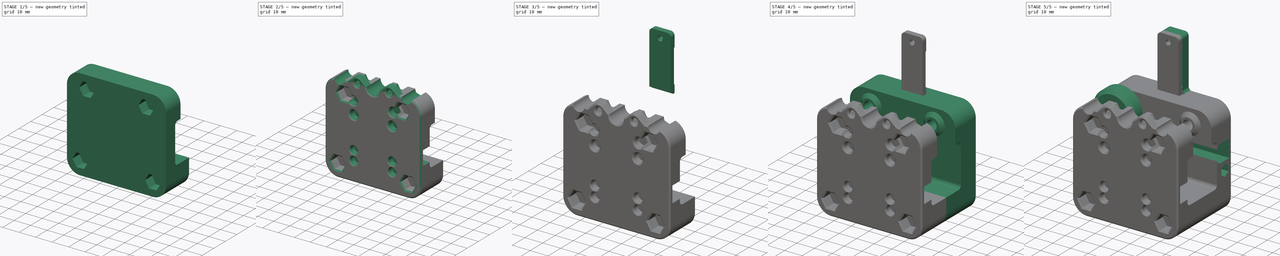
[diagram: build sequence overview — one tinted view per stage of 5, left to right]
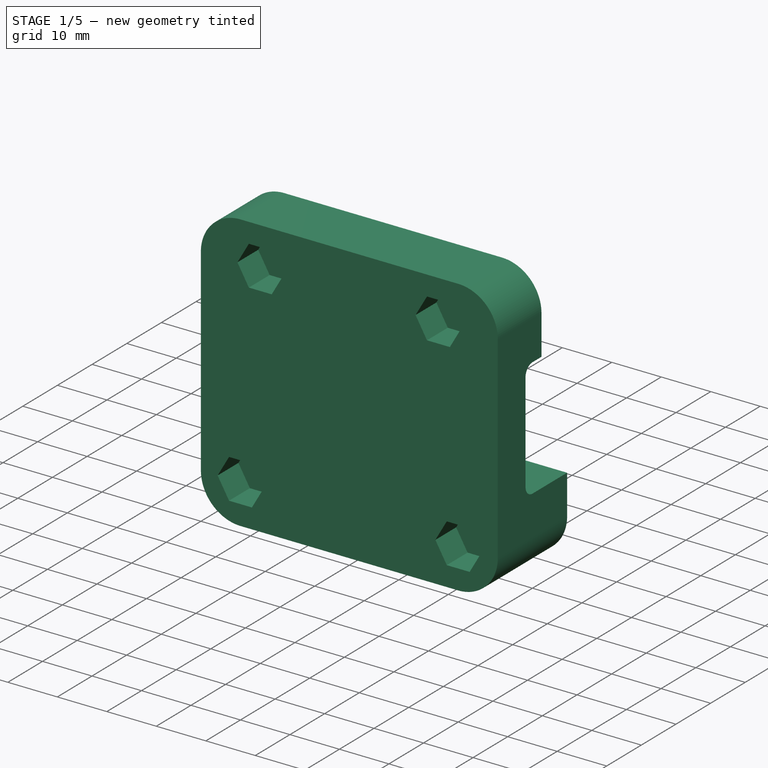
[diagram: stage 1 of 5 — iso view after this stage's code; geometry added in this stage tinted green]
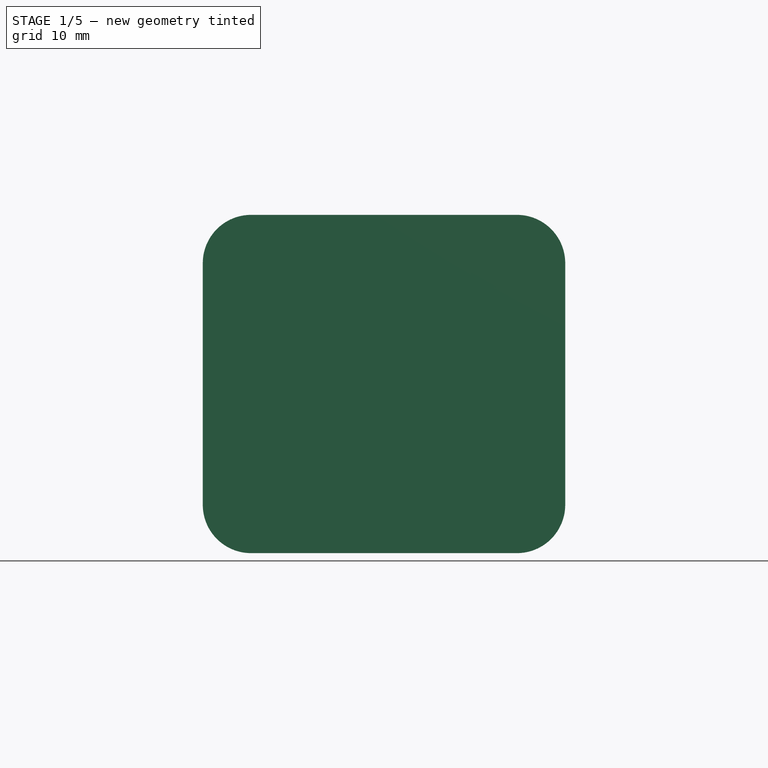
[diagram: stage 1 of 5 — front view after this stage's code; geometry added in this stage tinted green]
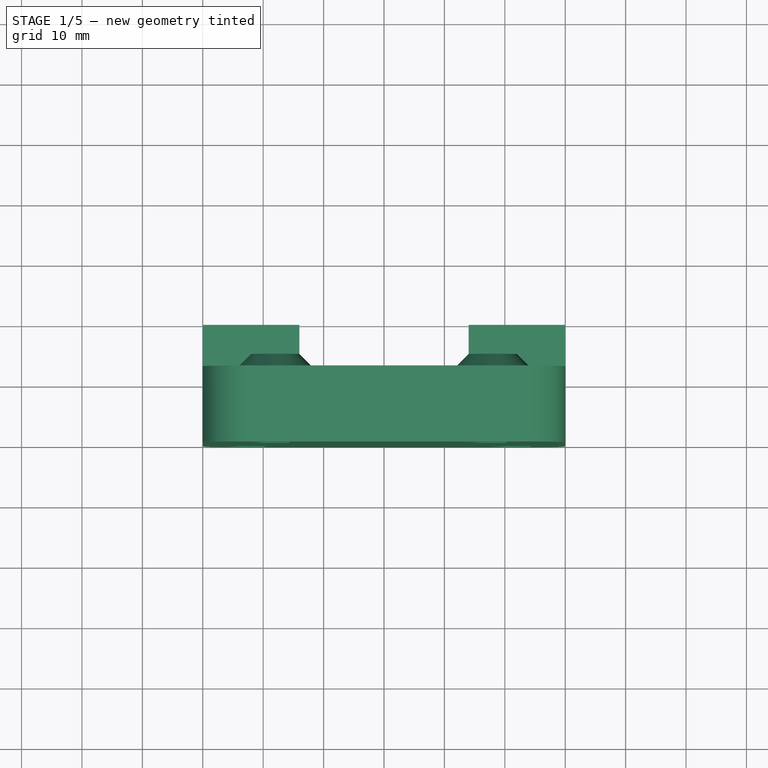
[diagram: stage 1 of 5 — top view after this stage's code; geometry added in this stage tinted green]
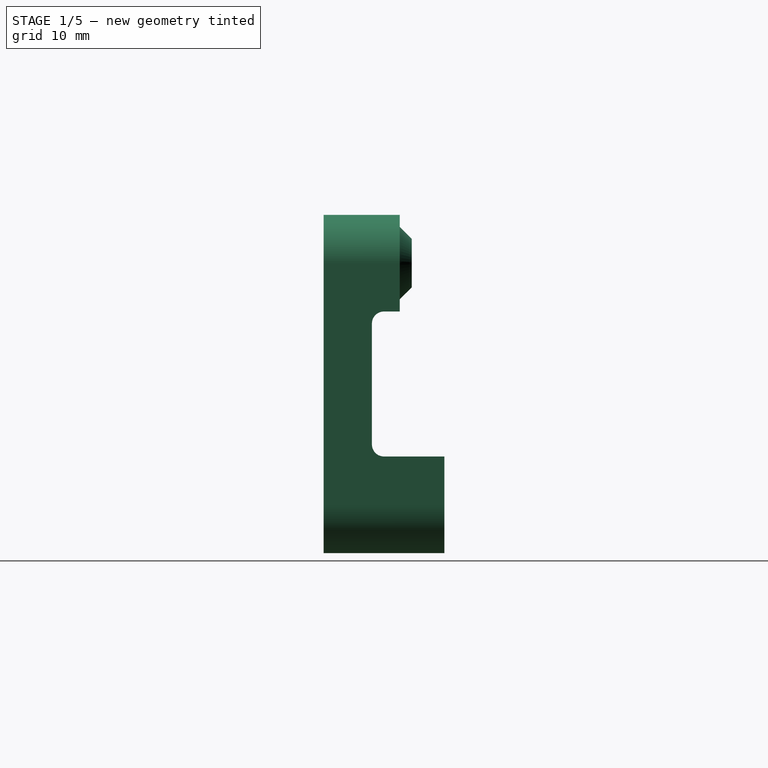
[diagram: stage 1 of 5 — right view after this stage's code; geometry added in this stage tinted green]
FCSTD DOCUMENT  (FreeCAD 1.0R38806 (Git))
Label: x-carriage
License: All rights reserved
LicenseURL: http://en.wikipedia.org/wiki/All_rights_reserved
objects: Sketcher::SketchObject×38, PartDesign::Pocket×27, PartDesign::Pad×6, PartDesign::Body×5, PartDesign::Mirrored×4, PartDesign::Chamfer×4, App::Link×2, PartDesign::Revolution×2, App::Part×2, PartDesign::PolarPattern×2, Spreadsheet::Sheet×1, Part::Mirroring×1, PartDesign::SubtractiveLoft×1, PartDesign::AdditiveLoft×1, PartDesign::Fillet×1
note: 220 computed .brp shape members not serialized (recipe doc carries the construction recipe); baked Part::Feature solids carry a one-line shape summary decoded from their .brp
EXTERNAL_REF file=../standard-stuff.FCStd obj=Body033

FEATURE [App::Link] Link001  label="v-wheel-bottom"
  LinkPlacement = pos=(0,0,-20) rot=(0,0,1;1.5708rad)
  LinkedObject = -> <external ../standard-stuff.FCStd>#Body033
  Placement = pos=(0,0,-20) rot=(0,0,1;1.5708rad)
  expr: .Placement.Base.z = -Spreadsheet.v_wheel_height
FEATURE [Sketcher::SketchObject] Sketch
  ArcFitTolerance = 1e-06
  AttachmentSupport = -> [XZ_Plane189]
  FullyConstrained = true
  MakeInternals = false
  MapMode = 5
  Placement = pos=(0,0,0) rot=(1,0,0;1.5708rad)
  sketch-geometry (12):
    g0: LineSegment StartX=-30 StartY=20 StartZ=0 EndX=-30 EndY=-20 EndZ=0
    g1: LineSegment StartX=-22 StartY=-28 StartZ=0 EndX=22 EndY=-28 EndZ=0
    g2: LineSegment StartX=30 StartY=-20 StartZ=0 EndX=30 EndY=20 EndZ=0
    g3: LineSegment StartX=22 StartY=28 StartZ=0 EndX=-22 EndY=28 EndZ=0
    g4: ArcOfCircle CenterX=-22 CenterY=20 CenterZ=0 NormalX=0 NormalY=0 NormalZ=1 AngleXU=0 Radius=8 StartAngle=1.5708 EndAngle=3.14159
    g5: GeomPoint [constr] X=-30 Y=28 Z=0
    g6: ArcOfCircle CenterX=22 CenterY=20 CenterZ=0 NormalX=0 NormalY=0 NormalZ=1 AngleXU=0 Radius=8 StartAngle=0 EndAngle=1.5708
    g7: GeomPoint [constr] X=30 Y=28 Z=0
    g8: ArcOfCircle CenterX=22 CenterY=-20 CenterZ=0 NormalX=0 NormalY=0 NormalZ=1 AngleXU=0 Radius=8 StartAngle=4.71239 EndAngle=6.28319
    g9: GeomPoint [constr] X=30 Y=-28 Z=0
    g10: ArcOfCircle CenterX=-22 CenterY=-20 CenterZ=0 NormalX=0 NormalY=0 NormalZ=1 AngleXU=0 Radius=8 StartAngle=3.14159 EndAngle=4.71239
    g11: GeomPoint [constr] X=-30 Y=-28 Z=0
  constraints (27):
    c: Vertical(g0)
    c: Vertical(g2)
    c: Horizontal(g1)
    c: Horizontal(g3)
    c: DistanceX(g11,g9) = 60
    c: Symmetric(g9,g5,g-1)
    c: DistanceY(g9,g7) = 56
    c: PointOnObject(g5,g0)
    c: PointOnObject(g5,g3)
    c: Tangent(g0,g4) = -1.5708
    c: Tangent(g3,g4) = -1.5708
    c: PointOnObject(g7,g2)
    c: PointOnObject(g7,g3)
    c: Tangent(g2,g6) = -1.5708
    c: Tangent(g3,g6) = -1.5708
    c: PointOnObject(g9,g1)
    c: PointOnObject(g9,g2)
    c: Tangent(g1,g8) = -1.5708
    c: Tangent(g2,g8) = -1.5708
    c: PointOnObject(g11,g0)
    c: PointOnObject(g11,g1)
    c: Tangent(g0,g10) = -1.5708
    c: Tangent(g1,g10) = -1.5708
    c: Equal(g10,g4)
    c: Equal(g4,g6)
    c: Equal(g6,g8)
    c: Radius(g8) = 8
FEATURE [PartDesign::Pad] Pad
  Direction = (0,-1,2e-16)
  Length = 20
  Length2 = 10
  Placement = pos=(0,0,0) rot=(1,0,0;1.5708rad)
  Profile = -> Sketch
  ReferenceAxis = -> Sketch [N_Axis]
  Suppressed = false
  Type = 0
FEATURE [Sketcher::SketchObject] Sketch386
  ArcFitTolerance = 1e-06
  AttachmentSupport = -> [YZ_Plane189]
  FullyConstrained = true
  MakeInternals = false
  MapMode = 5
  Placement = pos=(0,0,0) rot=(0.57735,0.57735,0.57735;2.0944rad)
  sketch-geometry (12):
    g0: LineSegment StartX=-12 StartY=10 StartZ=0 EndX=-12 EndY=-10 EndZ=0
    g1: LineSegment StartX=-10 StartY=-12 StartZ=0 EndX=10 EndY=-12 EndZ=0
    g2: LineSegment StartX=12 StartY=-10 StartZ=0 EndX=12 EndY=10 EndZ=0
    g3: LineSegment StartX=10 StartY=12 StartZ=0 EndX=-10 EndY=12 EndZ=0
    g4: ArcOfCircle CenterX=-10 CenterY=10 CenterZ=0 NormalX=0 NormalY=0 NormalZ=1 AngleXU=0 Radius=2 StartAngle=1.5708 EndAngle=3.14159
    g5: GeomPoint [constr] X=-12 Y=12 Z=0
    g6: ArcOfCircle CenterX=10 CenterY=10 CenterZ=0 NormalX=0 NormalY=0 NormalZ=1 AngleXU=0 Radius=2 StartAngle=4.6e-15 EndAngle=1.5708
    g7: GeomPoint [constr] X=12 Y=12 Z=0
    g8: ArcOfCircle CenterX=10 CenterY=-10 CenterZ=0 NormalX=0 NormalY=0 NormalZ=1 AngleXU=0 Radius=2 StartAngle=4.71239 EndAngle=6.28319
    g9: GeomPoint [constr] X=12 Y=-12 Z=0
    g10: ArcOfCircle CenterX=-10 CenterY=-10 CenterZ=0 NormalX=0 NormalY=0 NormalZ=1 AngleXU=0 Radius=2 StartAngle=3.14159 EndAngle=4.71239
    g11: GeomPoint [constr] X=-12 Y=-12 Z=0
  constraints (27):
    c: Vertical(g0)
    c: Vertical(g2)
    c: Horizontal(g1)
    c: Horizontal(g3)
    c: Symmetric(g9,g5,g-1)
    c: PointOnObject(g5,g0)
    c: PointOnObject(g5,g3)
    c: Tangent(g0,g4) = -1.5708
    c: Tangent(g3,g4) = -1.5708
    c: PointOnObject(g7,g2)
    c: PointOnObject(g7,g3)
    c: Tangent(g2,g6) = -1.5708
    c: Tangent(g3,g6) = -1.5708
    c: PointOnObject(g9,g1)
    c: PointOnObject(g9,g2)
    c: Tangent(g1,g8) = -1.5708
    c: Tangent(g2,g8) = -1.5708
    c: PointOnObject(g11,g0)
    c: PointOnObject(g11,g1)
    c: Tangent(g0,g10) = -1.5708
    c: Tangent(g1,g10) = -1.5708
    c: Equal(g10,g4)
    c: Equal(g4,g6)
    c: Equal(g6,g8)
    c: Equal(g1,g2)
    c: DistanceX(g1,g1) = 20
    c: Radius(g10) = 2
FEATURE [PartDesign::Pocket] Pocket
  BaseFeature = -> Pad
  Direction = (-1,0,0)
  Length = 5
  Length2 = 5
  Midplane = true
  Placement = pos=(0,0,0) rot=(1,0,0;1.5708rad)
  Profile = -> Sketch386
  ReferenceAxis = -> Sketch386 [N_Axis]
  Suppressed = false
  Type = 1
FEATURE [Sketcher::SketchObject] Sketch387
  ArcFitTolerance = 1e-06
  AttachmentSupport = -> [XY_Plane189]
  FullyConstrained = true
  MakeInternals = false
  MapMode = 5
  expr: Constraints[10] = Spreadsheet.v_wheel_width / 2 + 2
  sketch-geometry (4):
    g0: LineSegment StartX=-30 StartY=0 StartZ=0 EndX=-30 EndY=-7.4 EndZ=0
    g1: LineSegment StartX=-30 StartY=-7.4 StartZ=0 EndX=30 EndY=-7.4 EndZ=0
    g2: LineSegment StartX=30 StartY=-7.4 StartZ=0 EndX=30 EndY=0 EndZ=0
    g3: LineSegment StartX=30 StartY=0 StartZ=0 EndX=-30 EndY=0 EndZ=0
  constraints (11):
    c: Coincident(g0,g1)
    c: Coincident(g1,g2)
    c: Coincident(g2,g3)
    c: Coincident(g3,g0)
    c: Vertical(g0)
    c: Vertical(g2)
    c: Horizontal(g1)
    c: PointOnObject(g0,g-1)
    c: Symmetric(g2,g0,g-2)
    c: DistanceX(g1,g1) = 60
    c: DistanceY(g2,g2) = 7.4
FEATURE [PartDesign::Pocket] Pocket264
  BaseFeature = -> Pocket
  Direction = (0,0,-1)
  Length = 5
  Length2 = 5
  Placement = pos=(0,0,0) rot=(1,0,0;1.5708rad)
  Profile = -> Sketch387
  ReferenceAxis = -> Sketch387 [N_Axis]
  Reversed = true
  Suppressed = false
  Type = 1
FEATURE [Sketcher::SketchObject] Sketch388
  ArcFitTolerance = 1e-06
  AttachmentOffset = pos=(0,0,20) rot=(0,0,1;0rad)
  AttachmentSupport = -> [XY_Plane189]
  FullyConstrained = true
  MakeInternals = false
  MapMode = 5
  Placement = pos=(0,0,20) rot=(0,0,1;0rad)
  expr: .AttachmentOffset.Base.z = Spreadsheet.v_wheel_height
  expr: Constraints[10] = Spreadsheet.v_wheel_width / 2
  sketch-geometry (5):
    g0: GeomPoint X=-18 Y=0 Z=0
    g1: LineSegment StartX=-18 StartY=-5.4 StartZ=0 EndX=-14 EndY=-5.4 EndZ=0
    g2: LineSegment StartX=-14 StartY=-5.4 StartZ=0 EndX=-12 EndY=-7.4 EndZ=0
    g3: LineSegment StartX=-12 StartY=-7.4 StartZ=0 EndX=-18 EndY=-7.4 EndZ=0
    g4: LineSegment StartX=-18 StartY=-7.4 StartZ=0 EndX=-18 EndY=-5.4 EndZ=0
  constraints (14):
    c: PointOnObject(g0,g-1)
    c: DistanceX(g0) = -18
    c: Horizontal(g1)
    c: Coincident(g1,g2)
    c: Coincident(g2,g3)
    c: Horizontal(g3)
    c: Coincident(g3,g4)
    c: Coincident(g4,g1)
    c: Vertical(g4)
    c: Vertical(g1,g0)
    c: DistanceY(g1,g0) = 5.4
    c: DistanceY(g4,g4) = 2
    c: DistanceX(g1,g1) = 4
    c: Angle(g2) = -0.785398
FEATURE [PartDesign::Revolution] Revolution
  Angle = 360
  Angle2 = 60
  Axis = (0,1,0)
  Base = (-18,-7.4,20)
  BaseFeature = -> Pocket264
  Placement = pos=(0,0,0) rot=(1,0,0;1.5708rad)
  Profile = -> Sketch388
  ReferenceAxis = -> Sketch388 [Edge4]
  Suppressed = false
  Type = 0
FEATURE [PartDesign::Mirrored] Mirrored
  BaseFeature = -> Revolution
  MirrorPlane = -> YZ_Plane189
  Originals = -> [Revolution]
  Placement = pos=(0,0,0) rot=(1,0,0;1.5708rad)
  Suppressed = false
  TransformMode = 0
FEATURE [Sketcher::SketchObject] Sketch389
  ArcFitTolerance = 1e-06
  AttachmentOffset = pos=(0,0,13.7) rot=(0,0,1;0rad)
  AttachmentSupport = -> [XZ_Plane189]
  FullyConstrained = true
  MakeInternals = false
  MapMode = 5
  Placement = pos=(0,-13.7,3e-15) rot=(1,0,0;1.5708rad)
  expr: Constraints[9] = Spreadsheet.v_wheel_height
  sketch-geometry (4):
    g0: Circle CenterX=22 CenterY=-20 CenterZ=0 NormalX=0 NormalY=0 NormalZ=1 AngleXU=0 Radius=2.75
    g1: Circle CenterX=-22 CenterY=-20 CenterZ=0 NormalX=0 NormalY=0 NormalZ=1 AngleXU=0 Radius=2.75
    g2: Circle CenterX=-18 CenterY=20 CenterZ=0 NormalX=0 NormalY=0 NormalZ=1 AngleXU=0 Radius=2.75
    g3: Circle CenterX=18 CenterY=20 CenterZ=0 NormalX=0 NormalY=0 NormalZ=1 AngleXU=0 Radius=2.75
  constraints (10):
    c: Equal(g3,g0)
    c: Equal(g3,g1)
    c: Equal(g3,g2)
    c: Diameter(g3) = 5.5
    c: Symmetric(g3,g2,g-2)
    c: Symmetric(g1,g0,g-2)
    c: DistanceY(g0) = -20
    c: DistanceX(g1,g0) = 44
    c: DistanceX(g2,g3) = 36
    c: DistanceY(g3) = 20
FEATURE [PartDesign::Pocket] Pocket265
  BaseFeature = -> Mirrored
  Direction = (0,1,-2e-16)
  Length = 5
  Length2 = 5
  Placement = pos=(0,0,0) rot=(1,0,0;1.5708rad)
  Profile = -> Sketch389
  ReferenceAxis = -> Sketch389 [N_Axis]
  Suppressed = false
  Type = 1
FEATURE [Sketcher::SketchObject] Sketch390
  ArcFitTolerance = 1e-06
  AttachmentOffset = pos=(0,0,14) rot=(0,0,1;0rad)
  AttachmentSupport = -> [XZ_Plane189]
  FullyConstrained = true
  MakeInternals = false
  MapMode = 5
  Placement = pos=(0,-14,3.1e-15) rot=(1,0,0;1.5708rad)
  expr: Constraints[79] = Spreadsheet.v_wheel_height
  sketch-geometry (28):
    g0: LineSegment StartX=-15.6906 StartY=16 StartZ=0 EndX=-13.3812 EndY=20 EndZ=0
    g1: LineSegment StartX=-13.3812 StartY=20 StartZ=0 EndX=-15.6906 EndY=24 EndZ=0
    g2: LineSegment StartX=-15.6906 StartY=24 StartZ=0 EndX=-20.3094 EndY=24 EndZ=0
    g3: LineSegment StartX=-20.3094 StartY=24 StartZ=0 EndX=-22.6188 EndY=20 EndZ=0
    g4: LineSegment StartX=-22.6188 StartY=20 StartZ=0 EndX=-20.3094 EndY=16 EndZ=0
    g5: LineSegment StartX=-20.3094 StartY=16 StartZ=0 EndX=-15.6906 EndY=16 EndZ=0
    g6: Circle [constr] CenterX=-18 CenterY=20 CenterZ=0 NormalX=0 NormalY=0 NormalZ=1 AngleXU=0 Radius=4.6188
    g7: LineSegment StartX=22.6188 StartY=20 StartZ=0 EndX=20.3094 EndY=24 EndZ=0
    g8: LineSegment StartX=20.3094 StartY=24 StartZ=0 EndX=15.6906 EndY=24 EndZ=0
    g9: LineSegment StartX=15.6906 StartY=24 StartZ=0 EndX=13.3812 EndY=20 EndZ=0
    g10: LineSegment StartX=13.3812 StartY=20 StartZ=0 EndX=15.6906 EndY=16 EndZ=0
    g11: LineSegment StartX=15.6906 StartY=16 StartZ=0 EndX=20.3094 EndY=16 EndZ=0
    g12: LineSegment StartX=20.3094 StartY=16 StartZ=0 EndX=22.6188 EndY=20 EndZ=0
    g13: Circle [constr] CenterX=18 CenterY=20 CenterZ=0 NormalX=0 NormalY=0 NormalZ=1 AngleXU=0 Radius=4.6188
    g14: LineSegment StartX=24.3094 StartY=-24 StartZ=0 EndX=26.6188 EndY=-20 EndZ=0
    g15: LineSegment StartX=26.6188 StartY=-20 StartZ=0 EndX=24.3094 EndY=-16 EndZ=0
    g16: LineSegment StartX=24.3094 StartY=-16 StartZ=0 EndX=19.6906 EndY=-16 EndZ=0
    g17: LineSegment StartX=19.6906 StartY=-16 StartZ=0 EndX=17.3812 EndY=-20 EndZ=0
    g18: LineSegment StartX=17.3812 StartY=-20 StartZ=0 EndX=19.6906 EndY=-24 EndZ=0
    g19: LineSegment StartX=19.6906 StartY=-24 StartZ=0 EndX=24.3094 EndY=-24 EndZ=0
    g20: Circle [constr] CenterX=22 CenterY=-20 CenterZ=0 NormalX=0 NormalY=0 NormalZ=1 AngleXU=0 Radius=4.6188
    g21: LineSegment StartX=-24.3094 StartY=-24 StartZ=0 EndX=-19.6906 EndY=-24 EndZ=0
    g22: LineSegment StartX=-19.6906 StartY=-24 StartZ=0 EndX=-17.3812 EndY=-20 EndZ=0
    g23: LineSegment StartX=-17.3812 StartY=-20 StartZ=0 EndX=-19.6906 EndY=-16 EndZ=0
    g24: LineSegment StartX=-19.6906 StartY=-16 StartZ=0 EndX=-24.3094 EndY=-16 EndZ=0
    g25: LineSegment StartX=-24.3094 StartY=-16 StartZ=0 EndX=-26.6188 EndY=-20 EndZ=0
    g26: LineSegment StartX=-26.6188 StartY=-20 StartZ=0 EndX=-24.3094 EndY=-24 EndZ=0
    g27: Circle [constr] CenterX=-22 CenterY=-20 CenterZ=0 NormalX=0 NormalY=0 NormalZ=1 AngleXU=0 Radius=4.6188
  constraints (66):
    c: Coincident(g0,g1)
    c: Coincident(g1,g2)
    c: Coincident(g2,g3)
    c: Coincident(g3,g4)
    c: Coincident(g4,g5)
    c: Coincident(g5,g0)
    c: Equal(g0, g1-g5) x5
    c: PointOnObject(g0,g6)
    c: PointOnObject(g1,g6)
    c: PointOnObject(g2,g6)
    c: PointOnObject(g3,g6)
    c: PointOnObject(g4,g6)
    c: PointOnObject(g5,g6)
    c: Coincident(g7,g8)
    c: Coincident(g8,g9)
    c: Coincident(g9,g10)
    c: Coincident(g10,g11)
    c: Coincident(g11,g12)
    c: Coincident(g12,g7)
    c: Equal(g7, g8-g12) x5
    c: PointOnObject(g7,g13)
    c: PointOnObject(g8,g13)
    c: PointOnObject(g9,g13)
    c: PointOnObject(g10,g13)
    c: PointOnObject(g11,g13)
    c: PointOnObject(g12,g13)
    c: Coincident(g14,g15)
    c: Coincident(g15,g16)
    c: Coincident(g16,g17)
    c: Coincident(g17,g18)
    c: Coincident(g18,g19)
    c: Coincident(g19,g14)
    c: Equal(g14, g15-g19) x5
    c: PointOnObject(g14,g20)
    c: PointOnObject(g15,g20)
    c: PointOnObject(g16,g20)
    c: PointOnObject(g17,g20)
    c: PointOnObject(g18,g20)
    c: PointOnObject(g19,g20)
    c: Coincident(g21,g22)
    c: Coincident(g22,g23)
    c: Coincident(g23,g24)
    c: Coincident(g24,g25)
    c: Coincident(g25,g26)
    c: Coincident(g26,g21)
    c: Equal(g21, g22-g26) x5
    c: PointOnObject(g21,g27)
    c: PointOnObject(g22,g27)
    c: PointOnObject(g23,g27)
    c: PointOnObject(g24,g27)
    c: PointOnObject(g25,g27)
    c: PointOnObject(g26,g27)
    c: Symmetric(g20,g27,g-2)
    c: Symmetric(g13,g6,g-2)
    c: Equal(g13,g6)
    c: Equal(g6,g27)
    c: Equal(g27,g20)
    c: Horizontal(g16)
    c: Horizontal(g24)
    c: Horizontal(g5)
    c: Horizontal(g11)
    c: DistanceY(g11,g7) = 8
    c: DistanceX(g6,g13) = 36
    c: DistanceY(g13) = 20
    c: DistanceX(g27,g20) = 44
    c: DistanceY(g20) = -20
FEATURE [PartDesign::Pocket] Pocket266
  BaseFeature = -> Pocket265
  Direction = (0,1,-2e-16)
  Length = 5
  Length2 = 5
  Placement = pos=(0,0,0) rot=(1,0,0;1.5708rad)
  Profile = -> Sketch390
  ReferenceAxis = -> Sketch390 [N_Axis]
  Reversed = true
  Suppressed = false
  Type = 1
FEATURE [Sketcher::SketchObject] Sketch391
  ArcFitTolerance = 1e-06
  AttachmentSupport = -> [XY_Plane189]
  FullyConstrained = true
  MakeInternals = false
  MapMode = 5
  sketch-geometry (5):
    g0: LineSegment StartX=0 StartY=0 StartZ=0 EndX=14 EndY=0 EndZ=0
    g1: LineSegment StartX=14 StartY=0 StartZ=0 EndX=14 EndY=-5 EndZ=0
    g2: LineSegment StartX=14 StartY=-5 StartZ=0 EndX=9 EndY=-10 EndZ=0
    g3: LineSegment StartX=9 StartY=-10 StartZ=0 EndX=0 EndY=-10 EndZ=0
    g4: LineSegment StartX=0 StartY=-10 StartZ=0 EndX=0 EndY=0 EndZ=0
  constraints (14):
    c: Coincident(g-1,g0)
    c: PointOnObject(g0,g-1)
    c: Coincident(g0,g1)
    c: Vertical(g1)
    c: Coincident(g1,g2)
    c: Coincident(g2,g3)
    c: PointOnObject(g3,g-2)
    c: Horizontal(g3)
    c: Coincident(g3,g4)
    c: Coincident(g4,g0)
    c: DistanceX(g0,g0) = 14
    c: DistanceY(g1,g1) = 5
    c: Angle(g2) = -2.35619
    c: DistanceY(g3) = -10
FEATURE [PartDesign::Pocket] Pocket267
  BaseFeature = -> Pocket266
  Direction = (0,0,-1)
  Length = 20
  Length2 = 5
  Placement = pos=(0,0,0) rot=(1,0,0;1.5708rad)
  Profile = -> Sketch391
  ReferenceAxis = -> Sketch391 [N_Axis]
  Suppressed = false
  Type = 1
FEATURE [PartDesign::Mirrored] Mirrored018
  BaseFeature = -> Pocket267
  MirrorPlane = -> YZ_Plane189
  Originals = -> [Pocket267]
  Placement = pos=(0,0,0) rot=(1,0,0;1.5708rad)
  Refine = true
  Suppressed = false
  TransformMode = 0
FEATURE [App::Part] Part001  label="v-wheels"
  Group = -> [Link001,Link,Part__Mirroring]
  Origin = -> Origin190
FEATURE [Sketcher::SketchObject] Sketch393
  ArcFitTolerance = 0
  AttachmentOffset = pos=(0,0,12) rot=(0,0,1;0rad)
  AttachmentSupport = -> [XZ_Plane189]
  FullyConstrained = true
  MakeInternals = false
  MapMode = 5
  Placement = pos=(0,-12,2.7e-15) rot=(1,0,0;1.5708rad)
  sketch-geometry (9):
    g0: LineSegment StartX=-14 StartY=11.5 StartZ=0 EndX=-14 EndY=-3.5 EndZ=0
    g1: LineSegment StartX=-30 StartY=-0.5 StartZ=0 EndX=-30 EndY=8.5 EndZ=0
    g2: GeomPoint [constr] X=0 Y=5 Z=0
    g3: LineSegment StartX=-14 StartY=11.5 StartZ=0 EndX=-22 EndY=11.5 EndZ=0
    g4: LineSegment StartX=-22 StartY=11.5 StartZ=0 EndX=-22 EndY=8.5 EndZ=0
    g5: LineSegment StartX=-22 StartY=8.5 StartZ=0 EndX=-30 EndY=8.5 EndZ=0
    g6: LineSegment StartX=-30 StartY=-0.5 StartZ=0 EndX=-22 EndY=-0.5 EndZ=0
    g7: LineSegment StartX=-22 StartY=-0.5 StartZ=0 EndX=-22 EndY=-3.5 EndZ=0
    g8: LineSegment StartX=-22 StartY=-3.5 StartZ=0 EndX=-14 EndY=-3.5 EndZ=0
  constraints (26):
    c: Vertical(g0)
    c: Vertical(g1)
    c: DistanceX(g1) = -30
    c: DistanceY(g2) = 5
    c: DistanceX(g0) = -14
    c: Coincident(g3,g0)
    c: Horizontal(g3)
    c: Coincident(g4,g3)
    c: Vertical(g4)
    c: Coincident(g5,g4)
    c: Coincident(g5,g1)
    c: Coincident(g6,g1)
    c: Horizontal(g6)
    c: Coincident(g7,g6)
    c: Vertical(g7)
    c: Coincident(g8,g7)
    c: Coincident(g8,g0)
    c: Horizontal(g8)
    c: Horizontal(g5)
    c: Vertical(g4,g6)
    c: DistanceY(g4,g4) = 3
    c: DistanceX(g3,g3) = 8
    c: PointOnObject(g2,g-2)
    c: DistanceY(g1,g2) = 5.5
    c: Equal(g7,g4)
    c: DistanceY(g2,g1) = 3.5
FEATURE [Sketcher::SketchObject] Sketch394
  ArcFitTolerance = 0
  AttachmentOffset = pos=(0,0,18) rot=(0,0,1;0rad)
  AttachmentSupport = -> [XZ_Plane189]
  FullyConstrained = true
  MakeInternals = false
  MapMode = 5
  Placement = pos=(0,-18,4e-15) rot=(1,0,0;1.5708rad)
  sketch-geometry (9):
    g0: LineSegment StartX=-30 StartY=8.5 StartZ=0 EndX=-24 EndY=8.5 EndZ=0
    g1: LineSegment StartX=-24 StartY=8.5 StartZ=0 EndX=-24 EndY=11.5 EndZ=0
    g2: LineSegment StartX=-24 StartY=11.5 StartZ=0 EndX=-16 EndY=11.5 EndZ=0
    g3: LineSegment StartX=-16 StartY=11.5 StartZ=0 EndX=-16 EndY=-3.5 EndZ=0
    g4: LineSegment StartX=-16 StartY=-3.5 StartZ=0 EndX=-24 EndY=-3.5 EndZ=0
    g5: LineSegment StartX=-24 StartY=-3.5 StartZ=0 EndX=-24 EndY=-0.5 EndZ=0
    g6: LineSegment StartX=-24 StartY=-0.5 StartZ=0 EndX=-30 EndY=-0.5 EndZ=0
    g7: LineSegment StartX=-30 StartY=-0.5 StartZ=0 EndX=-30 EndY=8.5 EndZ=0
    g8: GeomPoint [constr] X=0 Y=5 Z=0
  constraints (26):
    c: Horizontal(g0)
    c: Coincident(g1,g0)
    c: Vertical(g1)
    c: Coincident(g2,g1)
    c: Horizontal(g2)
    c: Coincident(g3,g2)
    c: Vertical(g3)
    c: Coincident(g4,g3)
    c: Horizontal(g4)
    c: Coincident(g5,g4)
    c: Coincident(g6,g5)
    c: Horizontal(g6)
    c: Coincident(g7,g6)
    c: Coincident(g7,g0)
    c: Vertical(g7)
    c: Vertical(g5)
    c: Vertical(g5,g0)
    c: Equal(g1,g5)
    c: DistanceY(g1,g1) = 3
    c: DistanceX(g6) = -30
    c: DistanceX(g2) = -16  '-16'
    c: DistanceX(g4,g4) = 8
    c: PointOnObject(g8,g-2)
    c: DistanceY(g8) = 5
    c: DistanceY(g5,g8) = 5.5
    c: DistanceY(g8,g0) = 3.5
FEATURE [PartDesign::SubtractiveLoft] SubtractiveLoft001
  BaseFeature = -> Mirrored018
  Closed = false
  Placement = pos=(0,0,0) rot=(1,0,0;1.5708rad)
  Profile = -> Sketch393
  Ruled = false
  Sections = -> [Sketch394]
  Suppressed = false
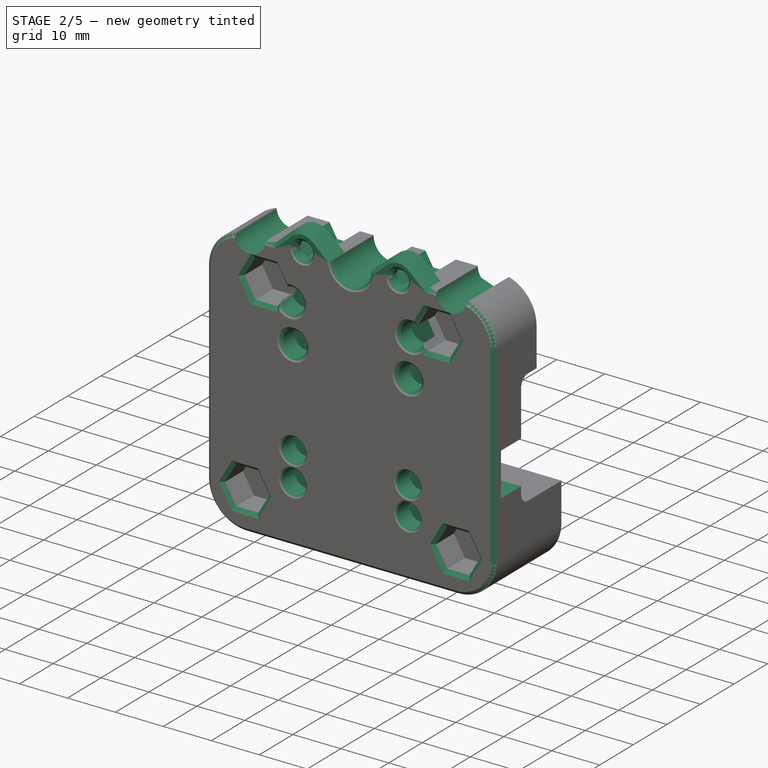
[diagram: stage 2 of 5 — iso view after this stage's code; geometry added in this stage tinted green]
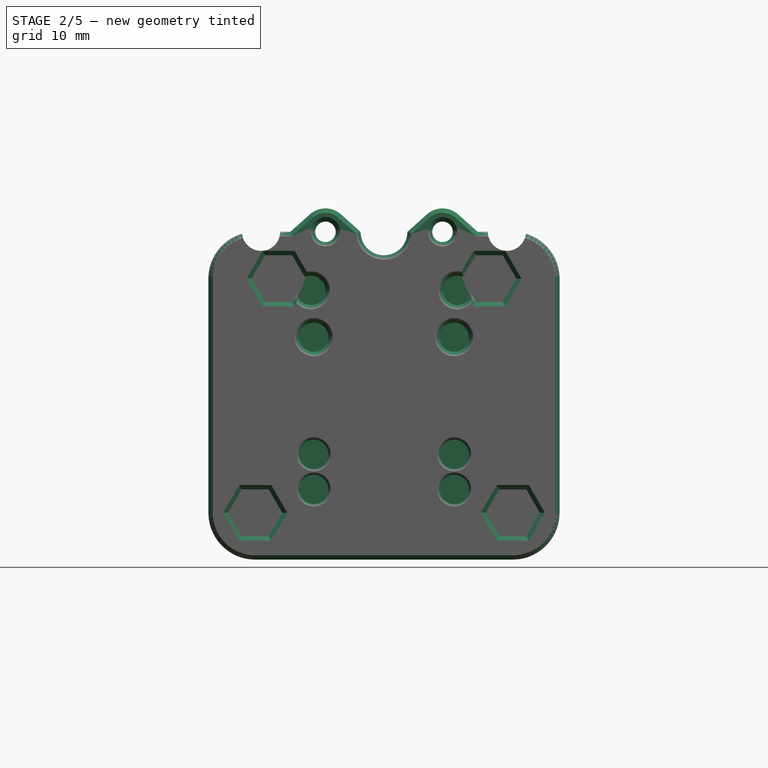
[diagram: stage 2 of 5 — front view after this stage's code; geometry added in this stage tinted green]
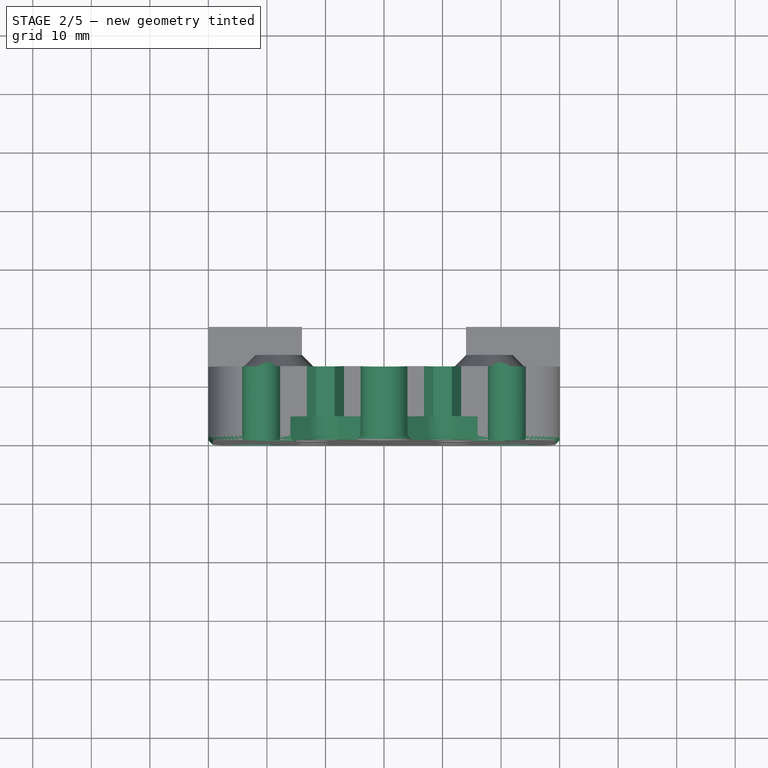
[diagram: stage 2 of 5 — top view after this stage's code; geometry added in this stage tinted green]
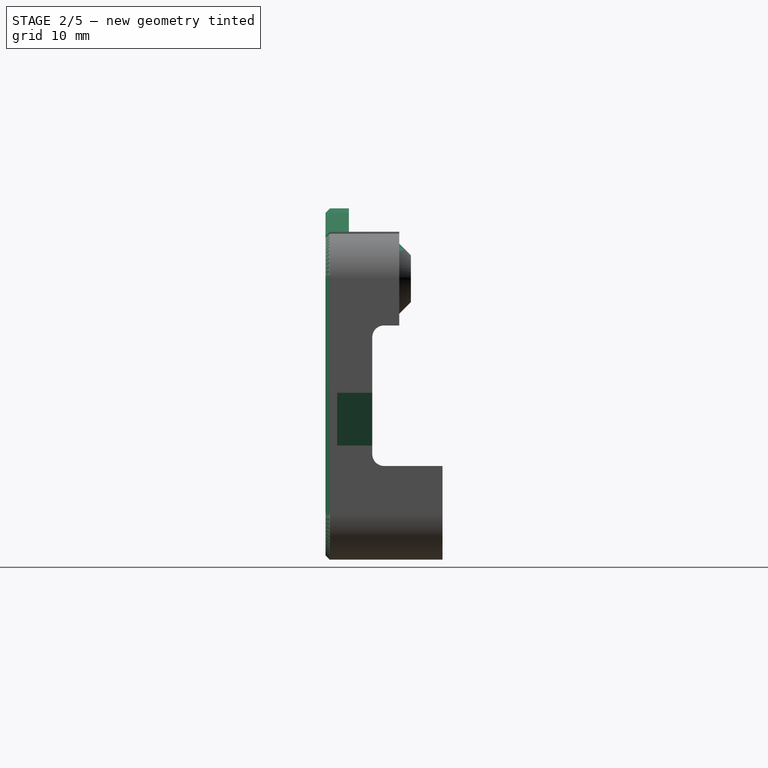
[diagram: stage 2 of 5 — right view after this stage's code; geometry added in this stage tinted green]
FEATURE [PartDesign::Pocket] Pocket268
  BaseFeature = -> SubtractiveLoft001
  Direction = (0,1,-2e-16)
  Length = 5
  Length2 = 5
  Placement = pos=(0,0,0) rot=(1,0,0;1.5708rad)
  Profile = -> Sketch393
  ReferenceAxis = -> Sketch393 [N_Axis]
  Refine = true
  Suppressed = false
  Type = 0
FEATURE [PartDesign::PolarPattern] PolarPattern
  Angle = 360
  Axis = -> Y_Axis190
  BaseFeature = -> Pocket268
  Mode = 0
  Occurrences = 2
  Offset = 120
  Originals = -> [Pocket268,SubtractiveLoft001]
  Placement = pos=(0,0,0) rot=(1,0,0;1.5708rad)
  Suppressed = false
  TransformMode = 0
FEATURE [Sketcher::SketchObject] Sketch395
  ArcFitTolerance = 1e-06
  AttachmentOffset = pos=(0,0,16) rot=(0,0,1;0rad)
  AttachmentSupport = -> [XZ_Plane189]
  FullyConstrained = true
  MakeInternals = false
  MapMode = 5
  Placement = pos=(0,-16,3.6e-15) rot=(1,0,0;1.5708rad)
  sketch-geometry (8):
    g0: Circle CenterX=12 CenterY=-10 CenterZ=0 NormalX=0 NormalY=0 NormalZ=1 AngleXU=0 Radius=2.5
    g1: Circle CenterX=12 CenterY=10 CenterZ=0 NormalX=0 NormalY=0 NormalZ=1 AngleXU=0 Radius=2.5
    g2: Circle CenterX=-12 CenterY=10 CenterZ=0 NormalX=0 NormalY=0 NormalZ=1 AngleXU=0 Radius=2.5
    g3: Circle CenterX=-12 CenterY=-10 CenterZ=0 NormalX=0 NormalY=0 NormalZ=1 AngleXU=0 Radius=2.5
    g4: Circle CenterX=12.5 CenterY=18 CenterZ=0 NormalX=0 NormalY=0 NormalZ=1 AngleXU=0 Radius=2.5
    g5: Circle CenterX=-12.5 CenterY=18 CenterZ=0 NormalX=0 NormalY=0 NormalZ=1 AngleXU=0 Radius=2.5
    g6: Circle CenterX=-12 CenterY=-16 CenterZ=0 NormalX=0 NormalY=0 NormalZ=1 AngleXU=0 Radius=2.5
    g7: Circle CenterX=12 CenterY=-16 CenterZ=0 NormalX=0 NormalY=0 NormalZ=1 AngleXU=0 Radius=2.5
  constraints (19):
    c: Symmetric(g4,g5,g-2)
    c: Symmetric(g2,g1,g-2)
    c: Symmetric(g0,g3,g-2)
    c: Symmetric(g0,g1,g-1)
    c: Equal(g1,g0)
    c: Equal(g0,g3)
    c: Equal(g3,g2)
    c: Equal(g5,g4)
    c: Equal(g4,g1)
    c: DistanceX(g1) = 12
    c: DistanceY(g1) = 10
    c: Radius(g0) = 2.5
    c: DistanceY(g4) = 18
    c: DistanceX(g4) = 12.5
    c: Symmetric(g7,g6,g-2)
    c: Equal(g7,g6)
    c: Equal(g7,g0)
    c: DistanceY(g7,g0) = 6
    c: DistanceX(g6,g7) = 24
FEATURE [PartDesign::Pocket] Pocket269
  BaseFeature = -> PolarPattern
  Direction = (0,1,-2e-16)
  Length = 5
  Length2 = 5
  Placement = pos=(0,0,0) rot=(1,0,0;1.5708rad)
  Profile = -> Sketch395
  ReferenceAxis = -> Sketch395 [N_Axis]
  Reversed = true
  Suppressed = false
  Type = 1
FEATURE [Sketcher::SketchObject] Sketch396
  ArcFitTolerance = 1e-06
  AttachmentSupport = -> [XZ_Plane189]
  FullyConstrained = true
  MakeInternals = false
  MapMode = 5
  Placement = pos=(0,0,0) rot=(1,0,0;1.5708rad)
  sketch-geometry (4):
    g0: ArcOfCircle CenterX=0 CenterY=28 CenterZ=0 NormalX=0 NormalY=0 NormalZ=1 AngleXU=0 Radius=4 StartAngle=3.14159 EndAngle=6.28319
    g1: LineSegment StartX=-4 StartY=28 StartZ=0 EndX=4 EndY=28 EndZ=0
    g2: Circle CenterX=21 CenterY=28 CenterZ=0 NormalX=0 NormalY=0 NormalZ=1 AngleXU=0 Radius=3.25
    g3: Circle CenterX=-21 CenterY=28 CenterZ=0 NormalX=0 NormalY=0 NormalZ=1 AngleXU=0 Radius=3.25
  constraints (12):
    c: PointOnObject(g0,g-2)
    c: Coincident(g1,g0)
    c: Coincident(g1,g0)
    c: Horizontal(g1)
    c: PointOnObject(g0,g1)
    c: DistanceY(g0) = 28
    c: Diameter(g0) = 8
    c: DistanceX(g2) = 21
    c: DistanceY(g2) = 28
    c: Diameter(g2) = 6.5
    c: Symmetric(g3,g2,g-2)
    c: Equal(g3,g2)
FEATURE [PartDesign::Pocket] Pocket270
  BaseFeature = -> Pocket269
  Direction = (0,1,-2e-16)
  Length = 5
  Length2 = 5
  Midplane = true
  Placement = pos=(0,0,0) rot=(1,0,0;1.5708rad)
  Profile = -> Sketch396
  ReferenceAxis = -> Sketch396 [N_Axis]
  Suppressed = false
  Type = 1
FEATURE [Sketcher::SketchObject] Sketch397
  ArcFitTolerance = 1e-06
  AttachmentOffset = pos=(0,0,20) rot=(0,0,1;0rad)
  AttachmentSupport = -> [XZ_Plane189]
  FullyConstrained = true
  MakeInternals = false
  MapMode = 5
  Placement = pos=(0,-20,4.4e-15) rot=(1,0,0;1.5708rad)
  sketch-geometry (6):
    g0: GeomPoint X=10 Y=28 Z=0
    g1: GeomPoint X=-10 Y=28 Z=0
    g2: ArcOfCircle CenterX=10 CenterY=28 CenterZ=0 NormalX=0 NormalY=0 NormalZ=1 AngleXU=0 Radius=4 StartAngle=0.841069 EndAngle=2.30052
    g3: LineSegment StartX=4 StartY=28 StartZ=0 EndX=7.33333 EndY=30.9814 EndZ=0
    g4: LineSegment StartX=12.6667 StartY=30.9814 StartZ=0 EndX=16 EndY=28 EndZ=0
    g5: LineSegment StartX=4 StartY=28 StartZ=0 EndX=16 EndY=28 EndZ=0
  constraints (12):
    c: Symmetric(g1,g0,g-2)
    c: DistanceX(g1,g0) = 20
    c: DistanceY(g0) = 28
    c: Coincident(g2,g0)
    c: Tangent(g3,g2) = 1.5708
    c: Symmetric(g4,g3,g0)
    c: Coincident(g5,g3)
    c: Coincident(g5,g4)
    c: Horizontal(g5)
    c: DistanceX(g3) = 4
    c: Tangent(g4,g2) = 1.5708
    c: Diameter(g2) = 8
FEATURE [PartDesign::Pad] Pad024
  BaseFeature = -> Pocket270
  Direction = (0,-1,2e-16)
  Length = 4
  Length2 = 10
  Placement = pos=(0,0,0) rot=(1,0,0;1.5708rad)
  Profile = -> Sketch397
  ReferenceAxis = -> Sketch397 [N_Axis]
  Reversed = true
  Suppressed = false
  Type = 0
FEATURE [PartDesign::Mirrored] Mirrored019
  BaseFeature = -> Pad024
  MirrorPlane = -> YZ_Plane189
  Originals = -> [Pad024]
  Placement = pos=(0,0,0) rot=(1,0,0;1.5708rad)
  Refine = true
  Suppressed = false
  TransformMode = 0
FEATURE [Sketcher::SketchObject] Sketch398
  ArcFitTolerance = 1e-06
  AttachmentSupport = -> [XZ_Plane189]
  FullyConstrained = true
  MakeInternals = false
  MapMode = 5
  Placement = pos=(0,0,0) rot=(1,0,0;1.5708rad)
  sketch-geometry (2):
    g0: Circle CenterX=10 CenterY=28 CenterZ=0 NormalX=0 NormalY=0 NormalZ=1 AngleXU=0 Radius=1.75
    g1: Circle CenterX=-10 CenterY=28 CenterZ=0 NormalX=0 NormalY=0 NormalZ=1 AngleXU=0 Radius=1.75
  constraints (5):
    c: Symmetric(g1,g0,g-2)
    c: Equal(g1,g0)
    c: Radius(g1) = 1.75
    c: DistanceX(g1,g0) = 20
    c: DistanceY(g0) = 28
FEATURE [PartDesign::Pocket] Pocket271
  BaseFeature = -> Mirrored019
  Direction = (0,1,-2e-16)
  Length = 5
  Length2 = 5
  Midplane = true
  Placement = pos=(0,0,0) rot=(1,0,0;1.5708rad)
  Profile = -> Sketch398
  ReferenceAxis = -> Sketch398 [N_Axis]
  Suppressed = false
  Type = 1
FEATURE [Sketcher::SketchObject] Sketch399
  ArcFitTolerance = 1e-06
  AttachmentOffset = pos=(0,0,18) rot=(0,0,1;0rad)
  AttachmentSupport = -> [XZ_Plane189]
  FullyConstrained = true
  MakeInternals = false
  MapMode = 5
  Placement = pos=(0,-18,4e-15) rot=(1,0,0;1.5708rad)
  sketch-geometry (14):
    g0: LineSegment StartX=-6.82457 StartY=28 StartZ=0 EndX=-8.41229 EndY=30.75 EndZ=0
    g1: LineSegment StartX=-8.41229 StartY=30.75 StartZ=0 EndX=-11.5877 EndY=30.75 EndZ=0
    g2: LineSegment StartX=-11.5877 StartY=30.75 StartZ=0 EndX=-13.1754 EndY=28 EndZ=0
    g3: LineSegment StartX=-13.1754 StartY=28 StartZ=0 EndX=-11.5877 EndY=25.25 EndZ=0
    g4: LineSegment StartX=-11.5877 StartY=25.25 StartZ=0 EndX=-8.41229 EndY=25.25 EndZ=0
    g5: LineSegment StartX=-8.41229 StartY=25.25 StartZ=0 EndX=-6.82457 EndY=28 EndZ=0
    g6: Circle [constr] CenterX=-10 CenterY=28 CenterZ=0 NormalX=0 NormalY=0 NormalZ=1 AngleXU=0 Radius=3.17543
    g7: LineSegment StartX=13.1754 StartY=28 StartZ=0 EndX=11.5877 EndY=30.75 EndZ=0
    g8: LineSegment StartX=11.5877 StartY=30.75 StartZ=0 EndX=8.41229 EndY=30.75 EndZ=0
    g9: LineSegment StartX=8.41229 StartY=30.75 StartZ=0 EndX=6.82457 EndY=28 EndZ=0
    g10: LineSegment StartX=6.82457 StartY=28 StartZ=0 EndX=8.41229 EndY=25.25 EndZ=0
    g11: LineSegment StartX=8.41229 StartY=25.25 StartZ=0 EndX=11.5877 EndY=25.25 EndZ=0
    g12: LineSegment StartX=11.5877 StartY=25.25 StartZ=0 EndX=13.1754 EndY=28 EndZ=0
    g13: Circle [constr] CenterX=10 CenterY=28 CenterZ=0 NormalX=0 NormalY=0 NormalZ=1 AngleXU=0 Radius=3.17543
  constraints (33):
    c: Coincident(g0,g1)
    c: Coincident(g1,g2)
    c: Coincident(g2,g3)
    c: Coincident(g3,g4)
    c: Coincident(g4,g5)
    c: Coincident(g5,g0)
    c: Equal(g0, g1-g5) x5
    c: PointOnObject(g0,g6)
    c: PointOnObject(g1,g6)
    c: PointOnObject(g2,g6)
    c: PointOnObject(g3,g6)
    c: PointOnObject(g4,g6)
    c: PointOnObject(g5,g6)
    c: Coincident(g7,g8)
    c: Coincident(g8,g9)
    c: Coincident(g9,g10)
    c: Coincident(g10,g11)
    c: Coincident(g11,g12)
    c: Coincident(g12,g7)
    c: Equal(g7, g8-g12) x5
    c: PointOnObject(g7,g13)
    c: PointOnObject(g8,g13)
    c: PointOnObject(g9,g13)
    c: PointOnObject(g10,g13)
    c: PointOnObject(g11,g13)
    c: PointOnObject(g12,g13)
    c: Symmetric(g13,g6,g-2)
    c: Horizontal(g8)
    c: Horizontal(g1)
    c: DistanceY(g11,g7) = 5.5
    c: DistanceY(g13) = 28
    c: DistanceX(g13) = 10
    c: Equal(g6,g13)
FEATURE [PartDesign::Pocket] Pocket272
  BaseFeature = -> Pocket271
  Direction = (0,1,-2e-16)
  Length = 5
  Length2 = 5
  Placement = pos=(0,0,0) rot=(1,0,0;1.5708rad)
  Profile = -> Sketch399
  ReferenceAxis = -> Sketch399 [N_Axis]
  Suppressed = false
  Type = 1
FEATURE [PartDesign::Body] Body160  label="x-carriage-wire-mount"
  AllowCompound = false
  Group = -> [Sketch351,Pad086,Fillet016,Sketch380,Pocket260]
  Origin = -> Origin305
  Tip = -> Pocket260
FEATURE [PartDesign::Chamfer] Chamfer
  Angle = 45
  Base = -> Pocket272 [Edge68,Edge75,Edge73,Edge94,Edge104,Edge111,Edge107,Edge109,Edge105,Edge106,Edge108,Edge110,Edge89,Edge87,Edge86,Edge88,Edge92,Edge91,Edge90,Edge93,Edge103,Edge67,Edge102,Edge101,Edge99,Edge97,Edge98,Edge100,Edge79,Edge78,Edge80,Edge82,Edge83,Edge81,Edge65,Edge74]
  BaseFeature = -> Pocket272
  ChamferType = 0
  FlipDirection = false
  Placement = pos=(0,0,0) rot=(1,0,0;1.5708rad)
  Size = 0.75
  Size2 = 1
  SupportTransform = false
  Suppressed = false
  UseAllEdges = false
FEATURE [PartDesign::Chamfer] Chamfer025
  Angle = 45
  Base = -> Chamfer [Edge116,Edge117,Edge118,Edge119]
  BaseFeature = -> Chamfer
  ChamferType = 0
  FlipDirection = false
  Placement = pos=(0,0,0) rot=(1,0,0;1.5708rad)
  Size = 0.4
  Size2 = 1
  SupportTransform = false
  Suppressed = false
  UseAllEdges = false
FEATURE [PartDesign::Body] Body  label="x-carriage-front"
  AllowCompound = false
  Group = -> [Sketch,Pad,Sketch386,Pocket,Sketch387,Pocket264,Sketch388,Revolution,Mirrored,Sketch389,Pocket265,Sketch390,Pocket266,Sketch391,Pocket267,Mirrored018,Sketch393,Sketch394,SubtractiveLoft001,Pocket268,PolarPattern,Sketch395,Pocket269,Sketch396,Pocket270,Sketch397,Pad024,Mirrored019,Sketch398,Pocket271,Sketch399,Pocket272,Chamfer,Chamfer025]
  Origin = -> Origin189
  Tip = -> Chamfer025
FEATURE [App::Part] Part  label="main"
  Group = -> [Body,Part001,Body055,Body058,Body059,Body160]
  Origin = -> Origin
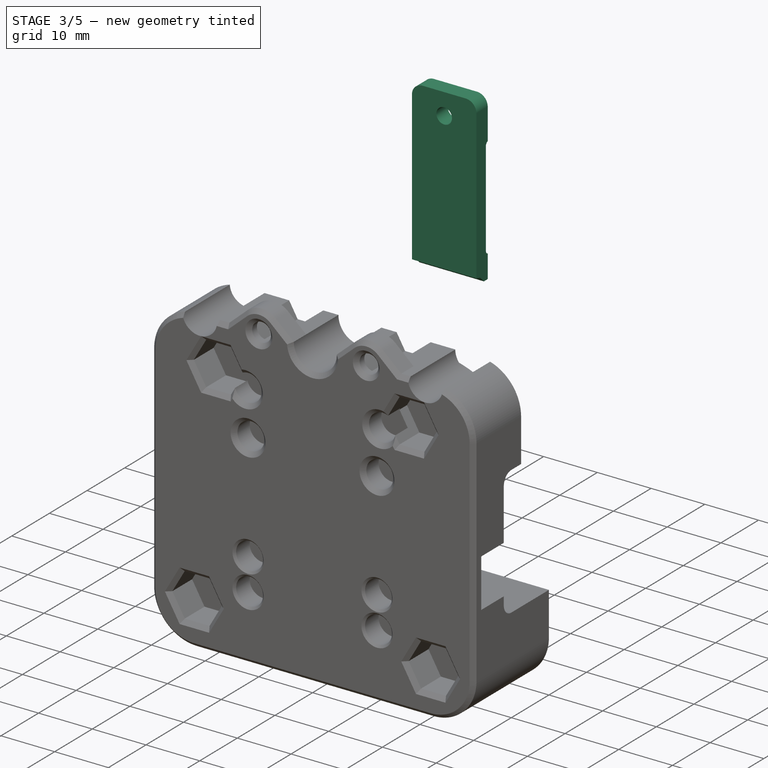
[diagram: stage 3 of 5 — iso view after this stage's code; geometry added in this stage tinted green]
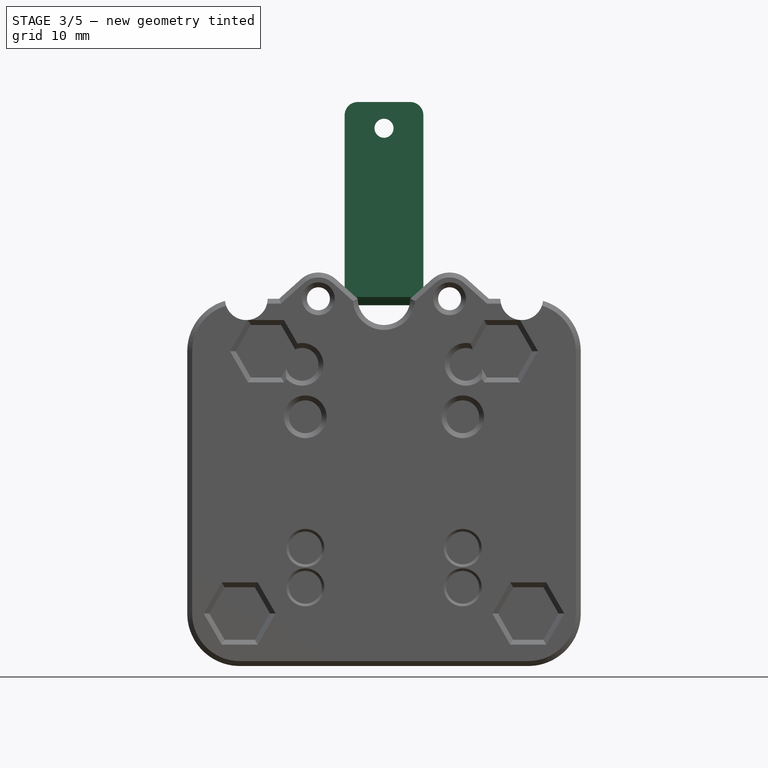
[diagram: stage 3 of 5 — front view after this stage's code; geometry added in this stage tinted green]
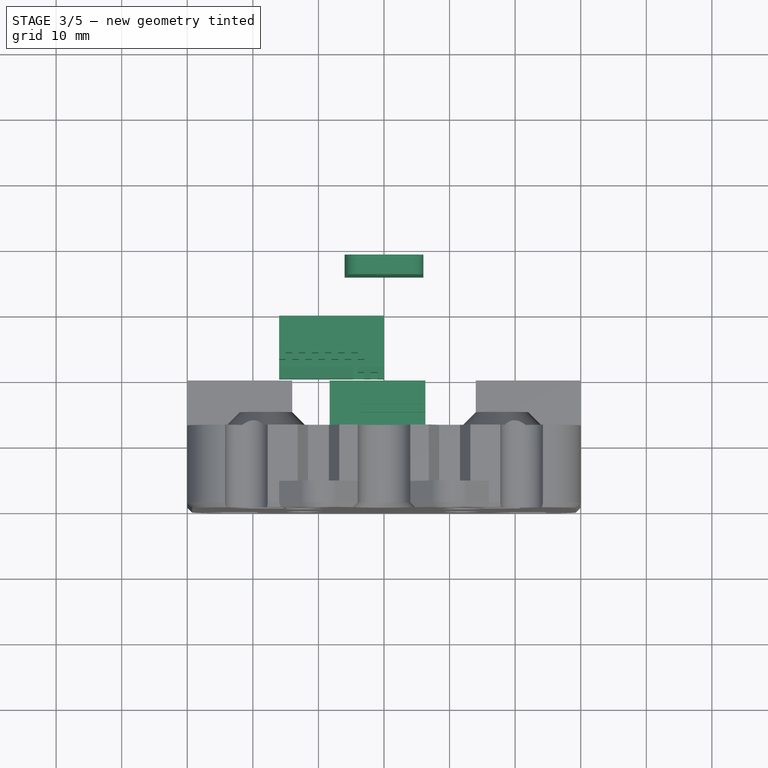
[diagram: stage 3 of 5 — top view after this stage's code; geometry added in this stage tinted green]
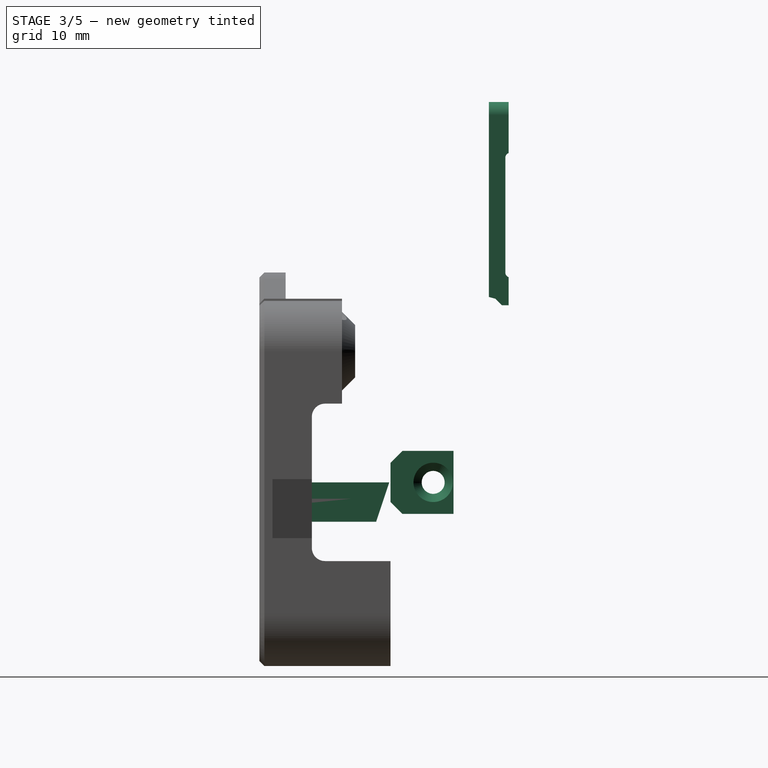
[diagram: stage 3 of 5 — right view after this stage's code; geometry added in this stage tinted green]
FEATURE [PartDesign::Body] Body055  label="x-carriage-back"
  AllowCompound = false
  Group = -> [Sketch400,Pad025,Sketch401,Pocket273,Sketch402,Pocket274,Sketch403,Sketch404,Pocket275,Revolution012,Mirrored020,Sketch405,Pocket276,Sketch406,Pocket277,Sketch407,Pocket278,Sketch408,Pocket279,Sketch409,Sketch410,Sketch411,Pocket280,Pocket281,Pocket282,PolarPattern003,Sketch412,Pad026,Sketch413,Pocket283,Sketch414,Pocket284,Sketch415,Pocket285,Chamfer024]
  Origin = -> Origin191
  Tip = -> Chamfer024
FEATURE [Sketcher::SketchObject] Sketch072
  ArcFitTolerance = 0
  AttachmentSupport = -> [XY_Plane192]
  FullyConstrained = true
  MakeInternals = false
  MapMode = 5
  sketch-geometry (8):
    g0: LineSegment StartX=-8.3 StartY=-0.2 StartZ=0 EndX=6.3 EndY=-0.2 EndZ=0
    g1: LineSegment StartX=6.3 StartY=-0.2 StartZ=0 EndX=6.3 EndY=-7.8 EndZ=0
    g2: LineSegment StartX=-8.3 StartY=-0.2 StartZ=0 EndX=-8.3 EndY=-7.8 EndZ=0
    g3: LineSegment StartX=-8.3 StartY=-7.8 StartZ=0 EndX=-5.3 EndY=-7.8 EndZ=0
    g4: LineSegment StartX=-5.3 StartY=-7.8 StartZ=0 EndX=-5.3 EndY=-16 EndZ=0
    g5: LineSegment StartX=-5.3 StartY=-16 StartZ=0 EndX=3.3 EndY=-16 EndZ=0
    g6: LineSegment StartX=3.3 StartY=-16 StartZ=0 EndX=3.3 EndY=-7.8 EndZ=0
    g7: LineSegment StartX=3.3 StartY=-7.8 StartZ=0 EndX=6.3 EndY=-7.8 EndZ=0
  constraints (24):
    c: Coincident(g1,g0)
    c: Vertical(g1)
    c: Coincident(g2,g0)
    c: Vertical(g2)
    c: Coincident(g3,g2)
    c: Horizontal(g3)
    c: Coincident(g4,g3)
    c: Vertical(g4)
    c: Coincident(g5,g4)
    c: Horizontal(g5)
    c: Coincident(g6,g5)
    c: Vertical(g6)
    c: Coincident(g7,g6)
    c: Coincident(g7,g1)
    c: Horizontal(g7)
    c: Equal(g3,g7)
    c: DistanceX(g3,g3) = 3
    c: DistanceX(g5) = 3.3
    c: DistanceX(g4) = -5.3
    c: DistanceY(g5) = -16
    c: Horizontal(g3,g6)
    c: DistanceY(g2,g2) = 7.6
    c: Horizontal(g0)
    c: DistanceY(g0) = -0.2
FEATURE [Sketcher::SketchObject] Sketch073
  ArcFitTolerance = 0
  AttachmentOffset = pos=(0,0,-6) rot=(0,0,1;0rad)
  AttachmentSupport = -> [XY_Plane192]
  FullyConstrained = true
  MakeInternals = false
  MapMode = 5
  Placement = pos=(0,0,-6) rot=(0,0,1;0rad)
  sketch-geometry (8):
    g0: LineSegment StartX=-8.3 StartY=-2.2 StartZ=0 EndX=6.3 EndY=-2.2 EndZ=0
    g1: LineSegment StartX=6.3 StartY=-2.2 StartZ=0 EndX=6.3 EndY=-9.8 EndZ=0
    g2: LineSegment StartX=-8.3 StartY=-2.2 StartZ=0 EndX=-8.3 EndY=-9.8 EndZ=0
    g3: LineSegment StartX=-8.3 StartY=-9.8 StartZ=0 EndX=-5.3 EndY=-9.8 EndZ=0
    g4: LineSegment StartX=-5.3 StartY=-9.8 StartZ=0 EndX=-5.3 EndY=-16 EndZ=0
    g5: LineSegment StartX=-5.3 StartY=-16 StartZ=0 EndX=3.3 EndY=-16 EndZ=0
    g6: LineSegment StartX=3.3 StartY=-16 StartZ=0 EndX=3.3 EndY=-9.8 EndZ=0
    g7: LineSegment StartX=3.3 StartY=-9.8 StartZ=0 EndX=6.3 EndY=-9.8 EndZ=0
  constraints (24):
    c: Coincident(g1,g0)
    c: Vertical(g1)
    c: Coincident(g2,g0)
    c: Vertical(g2)
    c: Coincident(g3,g2)
    c: Horizontal(g3)
    c: Coincident(g4,g3)
    c: Vertical(g4)
    c: Coincident(g5,g4)
    c: Horizontal(g5)
    c: Coincident(g6,g5)
    c: Vertical(g6)
    c: Coincident(g7,g6)
    c: Coincident(g7,g1)
    c: Horizontal(g7)
    c: Equal(g3,g7)
    c: DistanceX(g3,g3) = 3
    c: DistanceX(g5) = 3.3
    c: DistanceX(g4) = -5.3
    c: DistanceY(g5) = -16
    c: Horizontal(g3,g6)
    c: DistanceY(g2,g2) = 7.6
    c: Horizontal(g0)
    c: DistanceY(g0,g-1) = 2.2
FEATURE [PartDesign::AdditiveLoft] AdditiveLoft002
  Closed = false
  Profile = -> Sketch073
  Ruled = false
  Sections = -> [Sketch072]
  Suppressed = false
FEATURE [Sketcher::SketchObject] Sketch074
  ArcFitTolerance = 0
  AttachmentOffset = pos=(0,0,-3.5) rot=(0,0,1;0rad)
  AttachmentSupport = -> [YZ_Plane192]
  FullyConstrained = true
  MakeInternals = false
  MapMode = 5
  Placement = pos=(-3.5,0,0) rot=(0.57735,0.57735,0.57735;2.0944rad)
  sketch-geometry (34):
    g0: LineSegment StartX=-16 StartY=0 StartZ=0 EndX=-16 EndY=-0.5 EndZ=0
    g1: LineSegment StartX=-16 StartY=-0.5 StartZ=0 EndX=-6 EndY=-0.5 EndZ=0
    g2: LineSegment StartX=-6 StartY=-0.5 StartZ=0 EndX=-6 EndY=-2.5 EndZ=0
    g3: LineSegment StartX=-6 StartY=-2.5 StartZ=0 EndX=-16 EndY=-2.5 EndZ=0
    g4: LineSegment StartX=-16 StartY=-2.5 StartZ=0 EndX=-16 EndY=-4.5 EndZ=0
    g5: LineSegment StartX=-16 StartY=-4.5 StartZ=0 EndX=-15 EndY=-4.5 EndZ=0
    g6: LineSegment StartX=-15 StartY=-4.5 StartZ=0 EndX=-15 EndY=-3.3 EndZ=0
    g7: LineSegment StartX=-15 StartY=-3.3 StartZ=0 EndX=-14 EndY=-3.3 EndZ=0
    g8: LineSegment StartX=-14 StartY=-3.3 StartZ=0 EndX=-14 EndY=-4.5 EndZ=0
    g9: LineSegment StartX=-14 StartY=-4.5 StartZ=0 EndX=-13 EndY=-4.5 EndZ=0
    g10: LineSegment StartX=-13 StartY=-4.5 StartZ=0 EndX=-13 EndY=-3.3 EndZ=0
    g11: LineSegment StartX=-13 StartY=-3.3 StartZ=0 EndX=-12 EndY=-3.3 EndZ=0
    g12: LineSegment StartX=-12 StartY=-3.3 StartZ=0 EndX=-12 EndY=-4.5 EndZ=0
    g13: LineSegment StartX=-12 StartY=-4.5 StartZ=0 EndX=-11 EndY=-4.5 EndZ=0
    g14: LineSegment StartX=-11 StartY=-4.5 StartZ=0 EndX=-11 EndY=-3.3 EndZ=0
    g15: LineSegment StartX=-11 StartY=-3.3 StartZ=0 EndX=-10 EndY=-3.3 EndZ=0
    g16: LineSegment StartX=-10 StartY=-3.3 StartZ=0 EndX=-10 EndY=-4.5 EndZ=0
    g17: LineSegment StartX=-10 StartY=-4.5 StartZ=0 EndX=-9 EndY=-4.5 EndZ=0
    g18: LineSegment StartX=-9 StartY=-4.5 StartZ=0 EndX=-9 EndY=-3.3 EndZ=0
    g19: LineSegment StartX=-9 StartY=-3.3 StartZ=0 EndX=-8 EndY=-3.3 EndZ=0
    g20: LineSegment StartX=-8 StartY=-3.3 StartZ=0 EndX=-8 EndY=-4.5 EndZ=0
    g21: LineSegment StartX=-8 StartY=-4.5 StartZ=0 EndX=-7 EndY=-4.5 EndZ=0
    g22: LineSegment StartX=-7 StartY=-4.5 StartZ=0 EndX=-7 EndY=-3.3 EndZ=0
    g23: LineSegment StartX=-7 StartY=-3.3 StartZ=0 EndX=-6 EndY=-3.3 EndZ=0
    g24: LineSegment StartX=-6 StartY=-3.3 StartZ=0 EndX=-6 EndY=-4.5 EndZ=0
    g25: LineSegment StartX=-6 StartY=-4.5 StartZ=0 EndX=-5 EndY=-4.5 EndZ=0
    g26: LineSegment StartX=-5 StartY=-4.5 StartZ=0 EndX=-5 EndY=-3.3 EndZ=0
    g27: LineSegment StartX=-5 StartY=-3.3 StartZ=0 EndX=-3.8 EndY=-3.3 EndZ=0
    g28: LineSegment StartX=-3.8 StartY=-3.3 StartZ=0 EndX=-3.8 EndY=-2.3 EndZ=0
    g29: LineSegment StartX=-3.8 StartY=-2.3 StartZ=0 EndX=-5 EndY=-2.3 EndZ=0
    g30: LineSegment StartX=-5 StartY=-2.3 StartZ=0 EndX=-5 EndY=-1.3 EndZ=0
    g31: LineSegment StartX=-5 StartY=-1.3 StartZ=0 EndX=-3.8 EndY=-1.3 EndZ=0
    g32: LineSegment StartX=-3.8 StartY=-1.3 StartZ=0 EndX=-3.8 EndY=0 EndZ=0
    g33: LineSegment StartX=-3.8 StartY=0 StartZ=0 EndX=-16 EndY=0 EndZ=0
  constraints (102):
    c: PointOnObject(g0,g-1)
    c: Vertical(g0)
    c: Coincident(g1,g0)
    c: Horizontal(g1)
    c: Coincident(g2,g1)
    c: Vertical(g2)
    c: Coincident(g3,g2)
    c: Horizontal(g3)
    c: DistanceY(g2,g2) = 2
    c: DistanceY(g0,g0) = 0.5
    c: DistanceX(g0) = -16
    c: Vertical(g3,g0)
    c: Coincident(g4,g3)
    c: Vertical(g4)
    c: Coincident(g5,g4)
    c: Horizontal(g5)
    c: Coincident(g6,g5)
    c: Vertical(g6)
    c: Coincident(g7,g6)
    c: Horizontal(g7)
    c: Coincident(g8,g7)
    c: Vertical(g8)
    c: Coincident(g9,g8)
    c: Horizontal(g9)
    c: Coincident(g10,g9)
    c: Vertical(g10)
    c: Coincident(g11,g10)
    c: Horizontal(g11)
    c: Coincident(g12,g11)
    c: Vertical(g12)
    c: DistanceY(g4,g4) = 2
    c: DistanceX(g5,g5) = 1
    c: Coincident(g13,g12)
    c: Horizontal(g13)
    c: Coincident(g14,g13)
    c: Vertical(g14)
    c: Coincident(g15,g14)
    c: Horizontal(g15)
    c: Coincident(g16,g15)
    c: Vertical(g16)
    c: Coincident(g17,g16)
    c: Horizontal(g17)
    c: Coincident(g18,g17)
    c: Coincident(g19,g18)
    c: Coincident(g20,g19)
    c: Coincident(g21,g20)
    c: Horizontal(g21)
    c: Coincident(g22,g21)
    c: Vertical(g18)
    c: Vertical(g20)
    c: Horizontal(g19)
    c: Vertical(g22)
    c: Coincident(g23,g22)
    c: Horizontal(g23)
    c: Coincident(g24,g23)
    c: Vertical(g24)
    c: Coincident(g25,g24)
    c: Horizontal(g25)
    c: Coincident(g26,g25)
    c: Vertical(g26)
    c: DistanceX(g2) = -6
    c: Coincident(g27,g26)
    c: Horizontal(g27)
    c: Coincident(g28,g27)
    c: Vertical(g28)
    c: Coincident(g29,g28)
    c: Horizontal(g29)
    c: Coincident(g30,g29)
    c: Vertical(g30)
    c: Coincident(g31,g30)
    c: Horizontal(g31)
    c: Coincident(g32,g31)
    c: Vertical(g32)
    c: Coincident(g33,g32)
    c: Coincident(g33,g0)
    c: Horizontal(g33)
    c: Equal(g6,g8)
    c: Equal(g8,g10)
    c: Equal(g10,g12)
    c: Equal(g12,g14)
    c: Equal(g14,g16)
    c: Equal(g16,g18)
    c: Equal(g18,g20)
    c: Equal(g20,g22)
    c: Equal(g22,g24)
    c: Equal(g24,g26)
    c: Equal(g26,g27)
    c: Equal(g27,g29)
    c: Equal(g29,g31)
    c: Equal(g7,g9)
    c: Equal(g9,g11)
    c: Equal(g11,g13)
    c: Equal(g13,g15)
    c: Equal(g15,g17)
    c: Equal(g17,g19)
    c: Equal(g19,g21)
    c: Equal(g21,g23)
    c: Equal(g23,g25)
    c: Equal(g25,g28)
    c: Equal(g28,g30)
    c: Equal(g5,g7)
    c: DistanceY(g6,g6) = 1.2
FEATURE [PartDesign::Pocket] Pocket032
  BaseFeature = -> AdditiveLoft002
  Direction = (-1,0,0)
  Length = 5
  Length2 = 5
  Profile = -> Sketch074
  ReferenceAxis = -> Sketch074 [N_Axis]
  Reversed = true
  Suppressed = false
  Type = 1
FEATURE [PartDesign::Body] Body058  label="x-carriage-belt-mount-front-left"
  AllowCompound = false
  Group = -> [Sketch072,Sketch073,AdditiveLoft002,Sketch074,Pocket032]
  Origin = -> Origin192
  Placement = pos=(-14,-12,5) rot=(0.57735,0.57735,0.57735;4.18879rad)
  Tip = -> Pocket032
FEATURE [Sketcher::SketchObject] Sketch078
  ArcFitTolerance = 0
  AttachmentSupport = -> [YZ_Plane193]
  FullyConstrained = true
  MakeInternals = false
  MapMode = 5
  Placement = pos=(0,0,0) rot=(0.57735,0.57735,0.57735;2.0944rad)
  sketch-geometry (7):
    g0: LineSegment StartX=0 StartY=3 StartZ=0 EndX=0 EndY=-3 EndZ=0
    g1: LineSegment StartX=0 StartY=3 StartZ=0 EndX=1.8 EndY=4.8 EndZ=0
    g2: LineSegment StartX=1.8 StartY=4.8 StartZ=0 EndX=9.6 EndY=4.8 EndZ=0
    g3: LineSegment StartX=9.6 StartY=4.8 StartZ=0 EndX=9.6 EndY=-4.8 EndZ=0
    g4: LineSegment StartX=9.6 StartY=-4.8 StartZ=0 EndX=1.8 EndY=-4.8 EndZ=0
    g5: LineSegment StartX=1.8 StartY=-4.8 StartZ=0 EndX=0 EndY=-3 EndZ=0
    g6: GeomPoint [constr] X=0 Y=4.8 Z=0
  constraints (19):
    c: Vertical(g0)
    c: Coincident(g1,g0)
    c: Horizontal(g2)
    c: Coincident(g3,g2)
    c: Vertical(g3)
    c: Coincident(g4,g3)
    c: Horizontal(g4)
    c: Coincident(g5,g0)
    c: Angle(g1) = 0.785398
    c: Perpendicular(g5,g1)
    c: Vertical(g4,g2)
    c: DistanceX(g0,g2) = 9.6
    c: DistanceX(g0,g2) = 1.8
    c: DistanceY(g3,g3) = 9.6
    c: Coincident(g5,g4)
    c: Coincident(g2,g1)
    c: PointOnObject(g6,g2)
    c: PointOnObject(g6,g0)
    c: Symmetric(g0,g0,g-1)
FEATURE [PartDesign::Pad] Pad021
  Direction = (1,0,0)
  Length = 16
  Length2 = 10
  Placement = pos=(0,0,0) rot=(1,1,1;2.0944rad)
  Profile = -> Sketch078
  ReferenceAxis = -> Sketch078 [N_Axis]
  Reversed = true
  Suppressed = false
  Type = 0
FEATURE [Sketcher::SketchObject] Sketch079
  ArcFitTolerance = 0
  AttachmentOffset = pos=(0,0,-3) rot=(0,0,1;0rad)
  AttachmentSupport = -> [XY_Plane193]
  FullyConstrained = true
  MakeInternals = false
  MapMode = 5
  Placement = pos=(0,0,-3) rot=(0,0,1;0rad)
  sketch-geometry (40):
    g0: LineSegment StartX=0 StartY=0 StartZ=0 EndX=-1 EndY=0 EndZ=0
    g1: LineSegment StartX=-1 StartY=0 StartZ=0 EndX=-1 EndY=1 EndZ=0
    g2: LineSegment StartX=-1 StartY=1 StartZ=0 EndX=-2 EndY=1 EndZ=0
    g3: LineSegment StartX=-2 StartY=1 StartZ=0 EndX=-2 EndY=0 EndZ=0
    g4: LineSegment StartX=-2 StartY=0 StartZ=0 EndX=-3 EndY=0 EndZ=0
    g5: LineSegment StartX=-3 StartY=0 StartZ=0 EndX=-3 EndY=1 EndZ=0
    g6: LineSegment StartX=-3 StartY=1 StartZ=0 EndX=-4 EndY=1 EndZ=0
    g7: LineSegment StartX=-4 StartY=1 StartZ=0 EndX=-4 EndY=2 EndZ=0
    g8: LineSegment StartX=-4 StartY=2 StartZ=0 EndX=-3 EndY=2 EndZ=0
    g9: LineSegment StartX=-3 StartY=2 StartZ=0 EndX=-3 EndY=3 EndZ=0
    g10: LineSegment StartX=-3 StartY=3 StartZ=0 EndX=-4 EndY=3 EndZ=0
    g11: LineSegment StartX=0 StartY=0 StartZ=0 EndX=0 EndY=-0.75 EndZ=0
    g12: LineSegment StartX=0 StartY=-0.75 StartZ=0 EndX=-4.75 EndY=-0.75 EndZ=0
    g13: LineSegment StartX=-4.75 StartY=-0.75 StartZ=0 EndX=-4.75 EndY=2.25 EndZ=0
    g14: LineSegment StartX=-4.75 StartY=2.25 StartZ=0 EndX=-16 EndY=2.25 EndZ=0
    g15: LineSegment StartX=-4 StartY=3 StartZ=0 EndX=-4 EndY=4 EndZ=0
    g16: LineSegment StartX=-4 StartY=4 StartZ=0 EndX=-5 EndY=4 EndZ=0
    g17: LineSegment StartX=-5 StartY=4 StartZ=0 EndX=-5 EndY=3 EndZ=0
    g18: LineSegment StartX=-5 StartY=3 StartZ=0 EndX=-6 EndY=3 EndZ=0
    g19: LineSegment StartX=-6 StartY=3 StartZ=0 EndX=-6 EndY=4 EndZ=0
    g20: LineSegment StartX=-6 StartY=4 StartZ=0 EndX=-7 EndY=4 EndZ=0
    g21: LineSegment StartX=-7 StartY=4 StartZ=0 EndX=-7 EndY=3 EndZ=0
    g22: LineSegment StartX=-7 StartY=3 StartZ=0 EndX=-8 EndY=3 EndZ=0
    g23: LineSegment StartX=-8 StartY=3 StartZ=0 EndX=-8 EndY=4 EndZ=0
    g24: LineSegment StartX=-8 StartY=4 StartZ=0 EndX=-9 EndY=4 EndZ=0
    g25: LineSegment StartX=-9 StartY=4 StartZ=0 EndX=-9 EndY=3 EndZ=0
    g26: LineSegment StartX=-9 StartY=3 StartZ=0 EndX=-10 EndY=3 EndZ=0
    g27: LineSegment StartX=-10 StartY=3 StartZ=0 EndX=-10 EndY=4 EndZ=0
    g28: LineSegment StartX=-10 StartY=4 StartZ=0 EndX=-11 EndY=4 EndZ=0
    g29: LineSegment StartX=-11 StartY=4 StartZ=0 EndX=-11 EndY=3 EndZ=0
    g30: LineSegment StartX=-11 StartY=3 StartZ=0 EndX=-12 EndY=3 EndZ=0
    g31: LineSegment StartX=-12 StartY=3 StartZ=0 EndX=-12 EndY=4 EndZ=0
    g32: LineSegment StartX=-12 StartY=4 StartZ=0 EndX=-13 EndY=4 EndZ=0
    g33: LineSegment StartX=-13 StartY=4 StartZ=0 EndX=-13 EndY=3 EndZ=0
    g34: LineSegment StartX=-13 StartY=3 StartZ=0 EndX=-14 EndY=3 EndZ=0
    g35: LineSegment StartX=-14 StartY=3 StartZ=0 EndX=-14 EndY=4 EndZ=0
    g36: LineSegment StartX=-14 StartY=4 StartZ=0 EndX=-15 EndY=4 EndZ=0
    g37: LineSegment StartX=-15 StartY=4 StartZ=0 EndX=-15 EndY=3 EndZ=0
    g38: LineSegment StartX=-15 StartY=3 StartZ=0 EndX=-16 EndY=3 EndZ=0
    g39: LineSegment StartX=-16 StartY=2.25 StartZ=0 EndX=-16 EndY=3 EndZ=0
  constraints (119):
    c: Coincident(g-1,g0)
    c: PointOnObject(g0,g-1)
    c: Coincident(g0,g1)
    c: Vertical(g1)
    c: Coincident(g1,g2)
    c: Horizontal(g2)
    c: Coincident(g2,g3)
    c: PointOnObject(g3,g-1)
    c: Vertical(g3)
    c: Coincident(g3,g4)
    c: PointOnObject(g4,g-1)
    c: Coincident(g4,g5)
    c: Vertical(g5)
    c: Coincident(g5,g6)
    c: Horizontal(g6)
    c: Coincident(g6,g7)
    c: Vertical(g7)
    c: Coincident(g7,g8)
    c: Coincident(g8,g9)
    c: Coincident(g9,g10)
    c: Horizontal(g10)
    c: Vertical(g9)
    c: Horizontal(g8)
    c: Horizontal(g5,g1)
    c: Vertical(g5,g8)
    c: Vertical(g7,g10)
    c: Coincident(g11,g0)
    c: PointOnObject(g11,g-2)
    c: Coincident(g12,g11)
    c: Horizontal(g12)
    c: Coincident(g13,g12)
    c: Vertical(g13)
    c: Coincident(g14,g13)
    c: Horizontal(g14)
    c: DistanceX(g14) = -16
    c: DistanceX(g0,g0) = 1
    c: Equal(g0,g4)
    c: Equal(g4,g7)
    c: Equal(g2,g9)
    c: DistanceY(g1,g1) = 1
    c: DistanceY(g11,g11) = 0.75
    c: DistanceX(g12,g6) = 0.75
    c: Equal(g6,g5)
    c: Coincident(g15,g10)
    c: Vertical(g15)
    c: Coincident(g16,g15)
    c: Horizontal(g16)
    c: Coincident(g17,g16)
    c: Vertical(g17)
    c: Coincident(g17,g18)
    c: Horizontal(g18)
    c: Coincident(g18,g19)
    c: Vertical(g19)
    c: Coincident(g19,g20)
    c: Horizontal(g20)
    c: Coincident(g20,g21)
    c: Vertical(g21)
    c: Coincident(g21,g22)
    c: Horizontal(g22)
    c: Coincident(g22,g23)
    c: Vertical(g23)
    c: Coincident(g23,g24)
    c: Horizontal(g24)
    c: Coincident(g24,g25)
    c: Vertical(g25)
    c: Coincident(g25,g26)
    c: Horizontal(g26)
    c: Coincident(g26,g27)
    c: Vertical(g27)
    c: Coincident(g27,g28)
    c: Horizontal(g28)
    c: Coincident(g28,g29)
    c: Vertical(g29)
    c: Coincident(g29,g30)
    c: Horizontal(g30)
    c: Vertical(g31)
    c: Coincident(g31,g32)
    c: Horizontal(g32)
    c: Coincident(g32,g33)
    c: Vertical(g33)
    c: Coincident(g33,g34)
    c: Coincident(g34,g35)
    c: Vertical(g35)
    c: Coincident(g35,g36)
    c: Horizontal(g36)
    c: Coincident(g36,g37)
    c: Vertical(g37)
    c: Coincident(g37,g38)
    c: Horizontal(g38)
    c: Horizontal(g15,g19)
    c: Horizontal(g19,g23)
    c: Horizontal(g23,g27)
    c: Horizontal(g27,g31)
    c: Horizontal(g31,g35)
    c: Equal(g16,g20)
    c: Equal(g20,g24)
    c: Equal(g24,g28)
    c: Equal(g28,g32)
    c: Equal(g32,g36)
    c: Horizontal(g34)
    c: Equal(g38,g34)
    c: Equal(g34,g30)
    c: Equal(g30,g26)
    c: Equal(g26,g22)
    c: Equal(g22,g18)
    c: Equal(g16,g2)
    c: Equal(g18,g4)
    c: Horizontal(g17,g21)
    c: Horizontal(g21,g25)
    c: Horizontal(g25,g29)
    c: Horizontal(g29,g33)
    c: Horizontal(g33,g37)
    c: DistanceX(g4,g0) = 2
    c: Equal(g17,g3)
    c: DistanceY(g14,g38) = 0.75
    c: Coincident(g39,g14)
    c: Coincident(g39,g38)
    c: Equal(g15,g10)
    c: Coincident(g31,g30)
FEATURE [Sketcher::SketchObject] Sketch081
  ArcFitTolerance = 0
  AttachmentOffset = pos=(0,0,-4) rot=(0,0,1;0rad)
  AttachmentSupport = -> [YZ_Plane193]
  FullyConstrained = true
  MakeInternals = false
  MapMode = 5
  Placement = pos=(-4,0,0) rot=(0.57735,0.57735,0.57735;2.0944rad)
  sketch-geometry (2):
    g0: Circle CenterX=6.5 CenterY=0 CenterZ=0 NormalX=0 NormalY=0 NormalZ=1 AngleXU=0 Radius=1.75
    g1: Circle [constr] CenterX=6.5 CenterY=0 CenterZ=0 NormalX=0 NormalY=0 NormalZ=1 AngleXU=0 Radius=2.5
  constraints (5):
    c: Diameter(g0) = 3.5
    c: DistanceX(g-1,g0) = 6.5
    c: PointOnObject(g0,g-1)
    c: Coincident(g1,g0)
    c: Diameter(g1) = 5
FEATURE [PartDesign::Pocket] Pocket038
  BaseFeature = -> Pad021
  Direction = (-1,0,0)
  Length = 11
  Length2 = 5
  Midplane = true
  Placement = pos=(0,0,0) rot=(1,1,1;2.0944rad)
  Profile = -> Sketch081
  ReferenceAxis = -> Sketch081 [N_Axis]
  Suppressed = false
  Type = 1
FEATURE [PartDesign::Pocket] Pocket181
  BaseFeature = -> Pocket038
  Direction = (0,0,-1)
  Length = 6.5
  Length2 = 5
  Placement = pos=(0,0,0) rot=(1,1,1;2.0944rad)
  Profile = -> Sketch079
  ReferenceAxis = -> Sketch079 [N_Axis]
  Reversed = true
  Suppressed = false
  Type = 1
FEATURE [PartDesign::Chamfer] Chamfer006
  Angle = 45
  Base = -> Pocket181 [Edge10]
  BaseFeature = -> Pocket181
  ChamferType = 0
  FlipDirection = false
  Placement = pos=(0,0,0) rot=(1,1,1;2.0944rad)
  Size = 1.25
  Size2 = 1
  SupportTransform = false
  Suppressed = false
  UseAllEdges = false
FEATURE [PartDesign::Body] Body059  label="x-carriage-belt-mount-back-right"
  AllowCompound = false
  Group = -> [Sketch078,Pad021,Sketch079,Sketch081,Pocket038,Pocket181,Chamfer006]
  Origin = -> Origin193
  Placement = pos=(30,12,5) rot=(0,0,1;0rad)
  Tip = -> Chamfer006
FEATURE [Sketcher::SketchObject] Sketch351
  ArcFitTolerance = 0
  AttachmentSupport = -> [YZ_Plane304]
  FullyConstrained = true
  MakeInternals = false
  MapMode = 5
  Placement = pos=(0,0,0) rot=(0.57735,0.57735,0.57735;2.0944rad)
  sketch-geometry (12):
    g0: GeomPoint [constr] X=18 Y=28 Z=0
    g1: LineSegment StartX=15 StartY=58 StartZ=0 EndX=18 EndY=58 EndZ=0
    g2: LineSegment StartX=18 StartY=58 StartZ=0 EndX=18 EndY=50.2071 EndZ=0
    g3: LineSegment StartX=18 StartY=28 StartZ=0 EndX=18 EndY=27 EndZ=0
    g4: LineSegment StartX=18 StartY=27 StartZ=0 EndX=17 EndY=27 EndZ=0
    g5: ArcOfCircle CenterX=18.25 CenterY=49.5 CenterZ=0 NormalX=0 NormalY=0 NormalZ=1 AngleXU=0 Radius=0.75 StartAngle=1.91063 EndAngle=3.14159
    g6: ArcOfCircle CenterX=18.25 CenterY=32 CenterZ=0 NormalX=0 NormalY=0 NormalZ=1 AngleXU=0 Radius=0.75 StartAngle=3.14159 EndAngle=4.37255
    g7: LineSegment StartX=17.5 StartY=49.5 StartZ=0 EndX=17.5 EndY=32 EndZ=0
    g8: LineSegment StartX=18 StartY=31.2929 StartZ=0 EndX=18 EndY=28 EndZ=0
    g9: LineSegment StartX=17 StartY=27 StartZ=0 EndX=16 EndY=28 EndZ=0
    g10: LineSegment StartX=15 StartY=58 StartZ=0 EndX=15 EndY=28.2679 EndZ=0
    g11: LineSegment StartX=15 StartY=28.2679 StartZ=0 EndX=16 EndY=28 EndZ=0
  constraints (34):
    c: DistanceX(g0) = 18
    c: Coincident(g1,g2)
    c: Horizontal(g1)
    c: Vertical(g2)
    c: DistanceX(g1,g1) = 3
    c: DistanceY(g8,g2) = 30
    c: Coincident(g8,g3)
    c: Vertical(g3)
    c: Coincident(g3,g4)
    c: Horizontal(g4)
    c: DistanceY(g8) = 28
    c: DistanceX(g4,g4) = 1
    c: DistanceY(g3,g3) = 1
    c: Tangent(g5,g7) = -1.5708
    c: Tangent(g7,g6) = -1.5708
    c: Equal(g5,g6)
    c: Vertical(g7)
    c: DistanceY(g8,g6) = 4
    c: Coincident(g6,g8)
    c: Coincident(g5,g2)
    c: Radius(g5) = 0.75
    c: Vertical(g8)
    c: DistanceX(g6,g6) = 0.25
    c: DistanceY(g7,g7) = 17.5
    c: PointOnObject(g2,g8)
    c: Coincident(g9,g4)
    c: Horizontal(g9,g3)
    c: Angle(g9) = 2.35619
    c: Coincident(g3,g0)
    c: Coincident(g10,g1)
    c: Vertical(g10)
    c: Coincident(g11,g10)
    c: Coincident(g11,g9)
    c: Angle(g11) = -0.261799
FEATURE [PartDesign::Pad] Pad086
  Direction = (1,0,0)
  Length = 12
  Length2 = 10
  Midplane = true
  Placement = pos=(0,0,0) rot=(1,1,1;2.0944rad)
  Profile = -> Sketch351
  ReferenceAxis = -> Sketch351 [N_Axis]
  Suppressed = false
  Type = 0
FEATURE [PartDesign::Fillet] Fillet016
  Base = -> Pad086 [Edge4,Edge3]
  BaseFeature = -> Pad086
  Placement = pos=(0,0,0) rot=(1,1,1;2.0944rad)
  Radius = 2
  SupportTransform = false
  Suppressed = false
  UseAllEdges = false
FEATURE [Sketcher::SketchObject] Sketch380
  ArcFitTolerance = 0
  AttachmentSupport = -> [XZ_Plane304]
  FullyConstrained = true
  MakeInternals = false
  MapMode = 5
  Placement = pos=(0,0,0) rot=(1,0,0;1.5708rad)
  sketch-geometry (1):
    g0: Circle CenterX=0 CenterY=54 CenterZ=0 NormalX=0 NormalY=0 NormalZ=1 AngleXU=0 Radius=1.45
  constraints (3):
    c: PointOnObject(g0,g-2)
    c: DistanceY(g0) = 54
    c: Diameter(g0) = 2.9
FEATURE [PartDesign::Pocket] Pocket260
  BaseFeature = -> Fillet016
  Direction = (0,1,-2e-16)
  Length = 5
  Length2 = 5
  Midplane = true
  Placement = pos=(0,0,0) rot=(1,1,1;2.0944rad)
  Profile = -> Sketch380
  ReferenceAxis = -> Sketch380 [N_Axis]
  Suppressed = false
  Type = 1
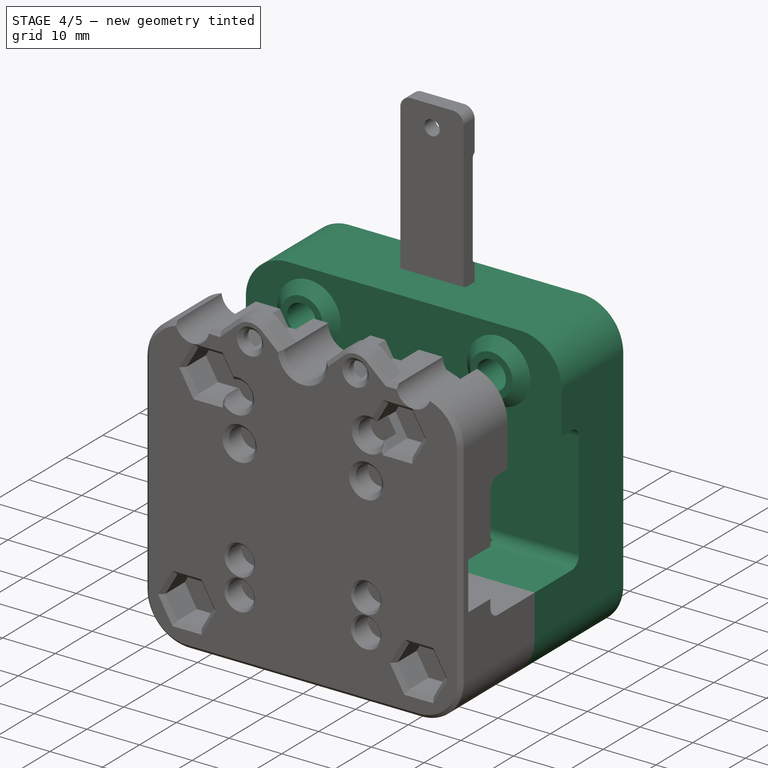
[diagram: stage 4 of 5 — iso view after this stage's code; geometry added in this stage tinted green]
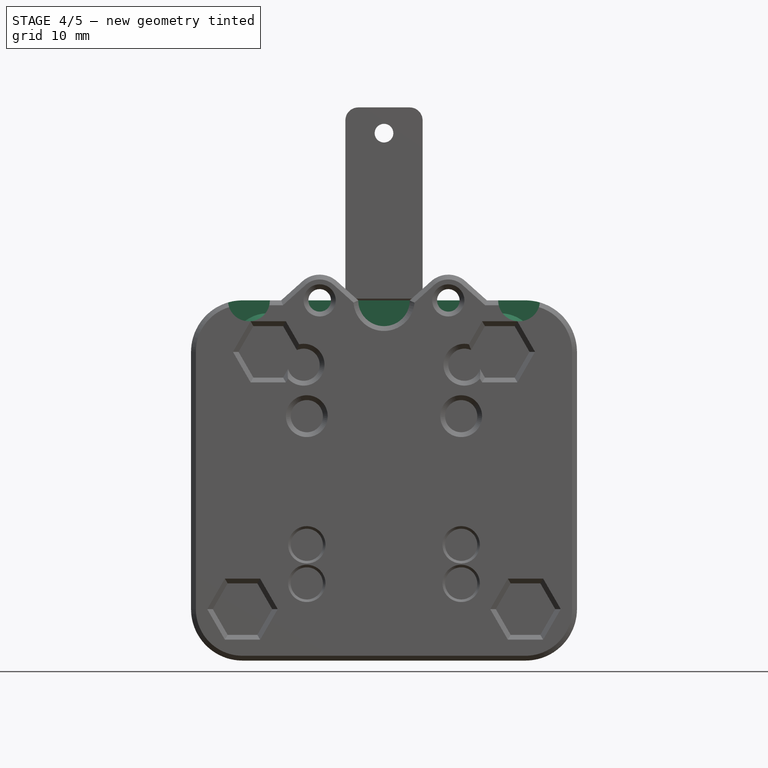
[diagram: stage 4 of 5 — front view after this stage's code; geometry added in this stage tinted green]
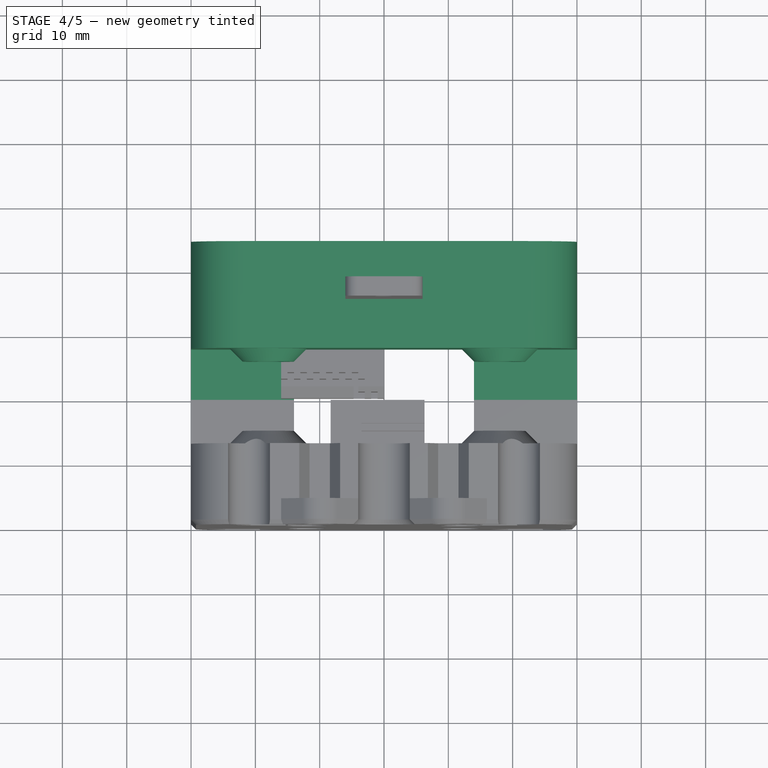
[diagram: stage 4 of 5 — top view after this stage's code; geometry added in this stage tinted green]
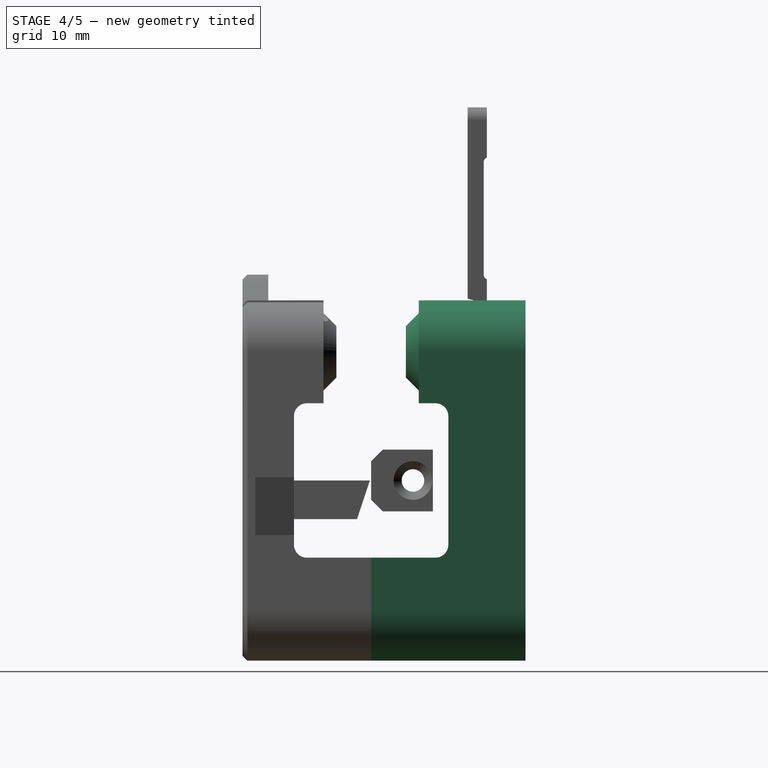
[diagram: stage 4 of 5 — right view after this stage's code; geometry added in this stage tinted green]
FEATURE [Sketcher::SketchObject] Sketch400
  ArcFitTolerance = 1e-06
  AttachmentSupport = -> [XZ_Plane191]
  FullyConstrained = true
  MakeInternals = false
  MapMode = 5
  Placement = pos=(0,0,0) rot=(1,0,0;1.5708rad)
  sketch-geometry (12):
    g0: LineSegment StartX=-30 StartY=20 StartZ=0 EndX=-30 EndY=-20 EndZ=0
    g1: LineSegment StartX=-22 StartY=-28 StartZ=0 EndX=22 EndY=-28 EndZ=0
    g2: LineSegment StartX=30 StartY=-20 StartZ=0 EndX=30 EndY=20 EndZ=0
    g3: LineSegment StartX=22 StartY=28 StartZ=0 EndX=-22 EndY=28 EndZ=0
    g4: ArcOfCircle CenterX=-22 CenterY=20 CenterZ=0 NormalX=0 NormalY=0 NormalZ=1 AngleXU=0 Radius=8 StartAngle=1.5708 EndAngle=3.14159
    g5: GeomPoint [constr] X=-30 Y=28 Z=0
    g6: ArcOfCircle CenterX=22 CenterY=20 CenterZ=0 NormalX=0 NormalY=0 NormalZ=1 AngleXU=0 Radius=8 StartAngle=1e-16 EndAngle=1.5708
    g7: GeomPoint [constr] X=30 Y=28 Z=0
    g8: ArcOfCircle CenterX=22 CenterY=-20 CenterZ=0 NormalX=0 NormalY=0 NormalZ=1 AngleXU=0 Radius=8 StartAngle=4.71239 EndAngle=6.28319
    g9: GeomPoint [constr] X=30 Y=-28 Z=0
    g10: ArcOfCircle CenterX=-22 CenterY=-20 CenterZ=0 NormalX=0 NormalY=0 NormalZ=1 AngleXU=0 Radius=8 StartAngle=3.14159 EndAngle=4.71239
    g11: GeomPoint [constr] X=-30 Y=-28 Z=0
  constraints (27):
    c: Vertical(g0)
    c: Vertical(g2)
    c: Horizontal(g1)
    c: Horizontal(g3)
    c: Symmetric(g9,g5,g-1)
    c: DistanceX(g5,g7) = 60
    c: DistanceY(g9,g7) = 56
    c: PointOnObject(g5,g0)
    c: PointOnObject(g5,g3)
    c: Tangent(g0,g4) = -1.5708
    c: Tangent(g3,g4) = -1.5708
    c: PointOnObject(g7,g2)
    c: PointOnObject(g7,g3)
    c: Tangent(g2,g6) = -1.5708
    c: Tangent(g3,g6) = -1.5708
    c: PointOnObject(g9,g1)
    c: PointOnObject(g9,g2)
    c: Tangent(g1,g8) = -1.5708
    c: Tangent(g2,g8) = -1.5708
    c: PointOnObject(g11,g0)
    c: PointOnObject(g11,g1)
    c: Tangent(g0,g10) = -1.5708
    c: Tangent(g1,g10) = -1.5708
    c: Equal(g10,g4)
    c: Equal(g4,g6)
    c: Equal(g6,g8)
    c: Radius(g8) = 8
FEATURE [PartDesign::Pad] Pad025
  Direction = (0,-1,2e-16)
  Length = 24
  Length2 = 10
  Placement = pos=(0,0,0) rot=(1,0,0;1.5708rad)
  Profile = -> Sketch400
  ReferenceAxis = -> Sketch400 [N_Axis]
  Reversed = true
  Suppressed = false
  Type = 0
FEATURE [Sketcher::SketchObject] Sketch401
  ArcFitTolerance = 1e-06
  AttachmentSupport = -> [YZ_Plane191]
  FullyConstrained = true
  MakeInternals = false
  MapMode = 5
  Placement = pos=(0,0,0) rot=(0.57735,0.57735,0.57735;2.0944rad)
  sketch-geometry (12):
    g0: LineSegment StartX=-12 StartY=10 StartZ=0 EndX=-12 EndY=-10 EndZ=0
    g1: LineSegment StartX=-10 StartY=-12 StartZ=0 EndX=10 EndY=-12 EndZ=0
    g2: LineSegment StartX=12 StartY=-10 StartZ=0 EndX=12 EndY=10 EndZ=0
    g3: LineSegment StartX=10 StartY=12 StartZ=0 EndX=-10 EndY=12 EndZ=0
    g4: ArcOfCircle CenterX=-10 CenterY=10 CenterZ=0 NormalX=0 NormalY=0 NormalZ=1 AngleXU=0 Radius=2 StartAngle=1.5708 EndAngle=3.14159
    g5: GeomPoint [constr] X=-12 Y=12 Z=0
    g6: ArcOfCircle CenterX=10 CenterY=10 CenterZ=0 NormalX=0 NormalY=0 NormalZ=1 AngleXU=0 Radius=2 StartAngle=8.8e-15 EndAngle=1.5708
    g7: GeomPoint [constr] X=12 Y=12 Z=0
    g8: ArcOfCircle CenterX=10 CenterY=-10 CenterZ=0 NormalX=0 NormalY=0 NormalZ=1 AngleXU=0 Radius=2 StartAngle=4.71239 EndAngle=6.28319
    g9: GeomPoint [constr] X=12 Y=-12 Z=0
    g10: ArcOfCircle CenterX=-10 CenterY=-10 CenterZ=0 NormalX=0 NormalY=0 NormalZ=1 AngleXU=0 Radius=2 StartAngle=3.14159 EndAngle=4.71239
    g11: GeomPoint [constr] X=-12 Y=-12 Z=0
  constraints (27):
    c: Vertical(g0)
    c: Vertical(g2)
    c: Horizontal(g1)
    c: Horizontal(g3)
    c: PointOnObject(g5,g0)
    c: PointOnObject(g5,g3)
    c: Tangent(g0,g4) = -1.5708
    c: Tangent(g3,g4) = -1.5708
    c: PointOnObject(g7,g2)
    c: PointOnObject(g7,g3)
    c: Tangent(g2,g6) = -1.5708
    c: Tangent(g3,g6) = -1.5708
    c: PointOnObject(g9,g1)
    c: PointOnObject(g9,g2)
    c: Tangent(g1,g8) = -1.5708
    c: Tangent(g2,g8) = -1.5708
    c: PointOnObject(g11,g0)
    c: PointOnObject(g11,g1)
    c: Tangent(g0,g10) = -1.5708
    c: Tangent(g1,g10) = -1.5708
    c: Equal(g10,g8)
    c: Equal(g8,g6)
    c: Equal(g6,g4)
    c: Equal(g3,g2)
    c: Symmetric(g9,g5,g-1)
    c: DistanceY(g2,g2) = 20
    c: Radius(g6) = 2
FEATURE [PartDesign::Pocket] Pocket273
  BaseFeature = -> Pad025
  Direction = (-1,0,0)
  Length = 5
  Length2 = 5
  Midplane = true
  Placement = pos=(0,0,0) rot=(1,0,0;1.5708rad)
  Profile = -> Sketch401
  ReferenceAxis = -> Sketch401 [N_Axis]
  Suppressed = false
  Type = 1
FEATURE [Sketcher::SketchObject] Sketch402
  ArcFitTolerance = 1e-06
  AttachmentSupport = -> [XY_Plane191]
  FullyConstrained = true
  MakeInternals = false
  MapMode = 5
  expr: Constraints[9] = Spreadsheet.v_wheel_width / 2 + 6
  sketch-geometry (4):
    g0: LineSegment StartX=-14 StartY=11.4 StartZ=0 EndX=-14 EndY=0 EndZ=0
    g1: LineSegment StartX=-14 StartY=0 StartZ=0 EndX=14 EndY=0 EndZ=0
    g2: LineSegment StartX=14 StartY=0 StartZ=0 EndX=14 EndY=11.4 EndZ=0
    g3: LineSegment StartX=14 StartY=11.4 StartZ=0 EndX=-14 EndY=11.4 EndZ=0
  constraints (11):
    c: Coincident(g0,g1)
    c: Coincident(g1,g2)
    c: Coincident(g2,g3)
    c: Coincident(g3,g0)
    c: Vertical(g0)
    c: Vertical(g2)
    c: Horizontal(g1)
    c: PointOnObject(g1,g-1)
    c: Symmetric(g2,g0,g-2)
    c: DistanceY(g2,g2) = 11.4
    c: DistanceX(g3,g3) = 28
FEATURE [PartDesign::Pocket] Pocket274
  BaseFeature = -> Pocket273
  Direction = (0,0,-1)
  Length = 5
  Length2 = 5
  Placement = pos=(0,0,0) rot=(1,0,0;1.5708rad)
  Profile = -> Sketch402
  ReferenceAxis = -> Sketch402 [N_Axis]
  Suppressed = false
  Type = 1
FEATURE [Sketcher::SketchObject] Sketch403
  ArcFitTolerance = 1e-06
  AttachmentOffset = pos=(0,0,20) rot=(0,0,1;0rad)
  AttachmentSupport = -> [XY_Plane191]
  FullyConstrained = true
  MakeInternals = false
  MapMode = 5
  Placement = pos=(0,0,20) rot=(0,0,1;0rad)
  expr: .AttachmentOffset.Base.z = Spreadsheet.v_wheel_height
  expr: Constraints[8] = Spreadsheet.v_wheel_width / 2
  sketch-geometry (4):
    g0: LineSegment StartX=18 StartY=7.4 StartZ=0 EndX=18 EndY=5.4 EndZ=0
    g1: LineSegment StartX=18 StartY=5.4 StartZ=0 EndX=22 EndY=5.4 EndZ=0
    g2: LineSegment StartX=22 StartY=5.4 StartZ=0 EndX=24 EndY=7.4 EndZ=0
    g3: LineSegment StartX=24 StartY=7.4 StartZ=0 EndX=18 EndY=7.4 EndZ=0
  constraints (12):
    c: Vertical(g0)
    c: Coincident(g0,g1)
    c: Horizontal(g1)
    c: Coincident(g1,g2)
    c: Coincident(g2,g3)
    c: Coincident(g3,g0)
    c: Horizontal(g3)
    c: DistanceY(g0,g0) = 2
    c: DistanceY(g0) = 5.4
    c: Angle(g2) = 0.785398
    c: DistanceX(g1,g1) = 4
    c: DistanceX(g0) = 18
FEATURE [Sketcher::SketchObject] Sketch404
  ArcFitTolerance = 1e-06
  AttachmentSupport = -> [XY_Plane191]
  FullyConstrained = true
  MakeInternals = false
  MapMode = 5
  expr: Constraints[9] = Spreadsheet.v_wheel_width / 2 + 2
  sketch-geometry (4):
    g0: LineSegment StartX=-30 StartY=7.4 StartZ=0 EndX=-30 EndY=0 EndZ=0
    g1: LineSegment StartX=-30 StartY=0 StartZ=0 EndX=30 EndY=0 EndZ=0
    g2: LineSegment StartX=30 StartY=0 StartZ=0 EndX=30 EndY=7.4 EndZ=0
    g3: LineSegment StartX=30 StartY=7.4 StartZ=0 EndX=-30 EndY=7.4 EndZ=0
  constraints (11):
    c: Coincident(g0,g1)
    c: Coincident(g1,g2)
    c: Coincident(g2,g3)
    c: Coincident(g3,g0)
    c: Vertical(g0)
    c: Vertical(g2)
    c: Horizontal(g1)
    c: PointOnObject(g1,g-1)
    c: Symmetric(g2,g0,g-2)
    c: DistanceY(g2,g2) = 7.4
    c: DistanceX(g3,g3) = 60
FEATURE [PartDesign::Pocket] Pocket275
  BaseFeature = -> Pocket274
  Direction = (0,0,-1)
  Length = 5
  Length2 = 5
  Placement = pos=(0,0,0) rot=(1,0,0;1.5708rad)
  Profile = -> Sketch404
  ReferenceAxis = -> Sketch404 [N_Axis]
  Reversed = true
  Suppressed = false
  Type = 1
FEATURE [PartDesign::Revolution] Revolution012
  Angle = 360
  Angle2 = 60
  Axis = (0,-1,0)
  Base = (18,7.4,20)
  BaseFeature = -> Pocket275
  Placement = pos=(0,0,0) rot=(1,0,0;1.5708rad)
  Profile = -> Sketch403
  ReferenceAxis = -> Sketch403 [Edge1]
  Reversed = true
  Suppressed = false
  Type = 0
FEATURE [PartDesign::Mirrored] Mirrored020
  BaseFeature = -> Revolution012
  MirrorPlane = -> YZ_Plane191
  Originals = -> [Revolution012]
  Placement = pos=(0,0,0) rot=(1,0,0;1.5708rad)
  Suppressed = false
  TransformMode = 0
FEATURE [Sketcher::SketchObject] Sketch405
  ArcFitTolerance = 1e-06
  AttachmentOffset = pos=(0,0,-20.7) rot=(0,0,1;0rad)
  AttachmentSupport = -> [XZ_Plane191]
  FullyConstrained = true
  MakeInternals = false
  MapMode = 5
  Placement = pos=(0,20.7,-4.6e-15) rot=(1,0,0;1.5708rad)
  expr: Constraints[6] = Spreadsheet.v_wheel_height
  sketch-geometry (4):
    g0: Circle CenterX=-18 CenterY=20 CenterZ=0 NormalX=0 NormalY=0 NormalZ=1 AngleXU=0 Radius=2.75
    g1: Circle CenterX=18 CenterY=20 CenterZ=0 NormalX=0 NormalY=0 NormalZ=1 AngleXU=0 Radius=2.75
    g2: Circle CenterX=-22 CenterY=-20 CenterZ=0 NormalX=0 NormalY=0 NormalZ=1 AngleXU=0 Radius=2.75
    g3: Circle CenterX=22 CenterY=-20 CenterZ=0 NormalX=0 NormalY=0 NormalZ=1 AngleXU=0 Radius=2.75
  constraints (10):
    c: Symmetric(g3,g2,g-2)
    c: Symmetric(g1,g0,g-2)
    c: Equal(g0,g1)
    c: Equal(g0,g3)
    c: Equal(g0,g2)
    c: Diameter(g0) = 5.5
    c: DistanceY(g0) = 20
    c: DistanceY(g3) = -20
    c: DistanceX(g3) = 22
    c: DistanceX(g1) = 18
FEATURE [PartDesign::Pocket] Pocket276
  BaseFeature = -> Mirrored020
  Direction = (0,1,-2e-16)
  Length = 5
  Length2 = 5
  Placement = pos=(0,0,0) rot=(1,0,0;1.5708rad)
  Profile = -> Sketch405
  ReferenceAxis = -> Sketch405 [N_Axis]
  Reversed = true
  Suppressed = false
  Type = 1
FEATURE [Sketcher::SketchObject] Sketch406
  ArcFitTolerance = 1e-06
  AttachmentOffset = pos=(0,0,-21) rot=(0,0,1;0rad)
  AttachmentSupport = -> [XZ_Plane191]
  FullyConstrained = true
  MakeInternals = false
  MapMode = 5
  Placement = pos=(0,21,-4.7e-15) rot=(1,0,0;1.5708rad)
  expr: Constraints[6] = Spreadsheet.v_wheel_height
  sketch-geometry (4):
    g0: Circle CenterX=-18 CenterY=20 CenterZ=0 NormalX=0 NormalY=0 NormalZ=1 AngleXU=0 Radius=5
    g1: Circle CenterX=18 CenterY=20 CenterZ=0 NormalX=0 NormalY=0 NormalZ=1 AngleXU=0 Radius=5
    g2: Circle CenterX=-22 CenterY=-20 CenterZ=0 NormalX=0 NormalY=0 NormalZ=1 AngleXU=0 Radius=5
    g3: Circle CenterX=22 CenterY=-20 CenterZ=0 NormalX=0 NormalY=0 NormalZ=1 AngleXU=0 Radius=5
  constraints (10):
    c: Symmetric(g3,g2,g-2)
    c: Symmetric(g1,g0,g-2)
    c: Equal(g0,g1)
    c: Equal(g0,g3)
    c: Equal(g0,g2)
    c: Diameter(g0) = 10
    c: DistanceY(g0) = 20
    c: DistanceY(g3) = -20
    c: DistanceX(g3) = 22
    c: DistanceX(g1) = 18
FEATURE [PartDesign::Pocket] Pocket277
  BaseFeature = -> Pocket276
  Direction = (0,1,-2e-16)
  Length = 5
  Length2 = 5
  Placement = pos=(0,0,0) rot=(1,0,0;1.5708rad)
  Profile = -> Sketch406
  ReferenceAxis = -> Sketch406 [N_Axis]
  Suppressed = false
  Type = 1
FEATURE [Sketcher::SketchObject] Sketch407
  ArcFitTolerance = 1e-06
  AttachmentOffset = pos=(0,0,-19) rot=(0,0,1;0rad)
  AttachmentSupport = -> [XZ_Plane191]
  FullyConstrained = true
  MakeInternals = false
  MapMode = 5
  Placement = pos=(0,19,-4.2e-15) rot=(1,0,0;1.5708rad)
  expr: Constraints[1] = -Spreadsheet.v_wheel_height
  sketch-geometry (8):
    g0: Circle [constr] CenterX=0 CenterY=-20 CenterZ=0 NormalX=0 NormalY=0 NormalZ=1 AngleXU=0 Radius=10
    g1: GeomPoint X=0 Y=-28 Z=0
    g2: ArcOfCircle CenterX=0 CenterY=-20 CenterZ=0 NormalX=0 NormalY=0 NormalZ=1 AngleXU=0 Radius=10 StartAngle=0 EndAngle=3.14159
    g3: ArcOfCircle CenterX=13 CenterY=-25 CenterZ=0 NormalX=0 NormalY=0 NormalZ=1 AngleXU=0 Radius=3 StartAngle=3.14159 EndAngle=4.71239
    g4: ArcOfCircle CenterX=-13 CenterY=-25 CenterZ=0 NormalX=0 NormalY=0 NormalZ=1 AngleXU=0 Radius=3 StartAngle=4.71239 EndAngle=6.28319
    g5: LineSegment StartX=10 StartY=-25 StartZ=0 EndX=10 EndY=-20 EndZ=0
    g6: LineSegment StartX=-10 StartY=-20 StartZ=0 EndX=-10 EndY=-25 EndZ=0
    g7: LineSegment StartX=-13 StartY=-28 StartZ=0 EndX=13 EndY=-28 EndZ=0
  constraints (19):
    c: PointOnObject(g0,g-2)
    c: DistanceY(g0) = -20
    c: Diameter(g0) = 20
    c: PointOnObject(g1,g-2)
    c: DistanceY(g1) = -28
    c: Coincident(g2,g0)
    c: PointOnObject(g2,g0)
    c: Equal(g4,g3)
    c: Vertical(g5)
    c: Horizontal(g7)
    c: Tangent(g6,g4) = 1.5708
    c: Tangent(g6,g2) = -1.5708
    c: Vertical(g6)
    c: Tangent(g7,g4) = -1.5708
    c: Tangent(g7,g3) = -1.5708
    c: Tangent(g5,g3) = 1.5708
    c: Tangent(g5,g2) = -1.5708
    c: PointOnObject(g1,g7)
    c: Radius(g4) = 3
FEATURE [PartDesign::Pocket] Pocket278
  BaseFeature = -> Pocket277
  Direction = (0,1,-2e-16)
  Length = 5
  Length2 = 5
  Placement = pos=(0,0,0) rot=(1,0,0;1.5708rad)
  Profile = -> Sketch407
  ReferenceAxis = -> Sketch407 [N_Axis]
  Suppressed = false
  Type = 1
FEATURE [Sketcher::SketchObject] Sketch408
  ArcFitTolerance = 1e-06
  AttachmentOffset = pos=(0,0,-18.7) rot=(0,0,1;0rad)
  AttachmentSupport = -> [XZ_Plane191]
  FullyConstrained = true
  MakeInternals = false
  MapMode = 5
  Placement = pos=(0,18.7,-4.2e-15) rot=(1,0,0;1.5708rad)
  expr: Constraints[1] = -Spreadsheet.v_wheel_height
  sketch-geometry (1):
    g0: Circle CenterX=0 CenterY=-20 CenterZ=0 NormalX=0 NormalY=0 NormalZ=1 AngleXU=0 Radius=3.75
  constraints (3):
    c: PointOnObject(g0,g-2)
    c: DistanceY(g0) = -20
    c: Diameter(g0) = 7.5
FEATURE [PartDesign::Pocket] Pocket279
  BaseFeature = -> Pocket278
  Direction = (0,1,-2e-16)
  Length = 5
  Length2 = 5
  Placement = pos=(0,0,0) rot=(1,0,0;1.5708rad)
  Profile = -> Sketch408
  ReferenceAxis = -> Sketch408 [N_Axis]
  Reversed = true
  Suppressed = false
  Type = 1
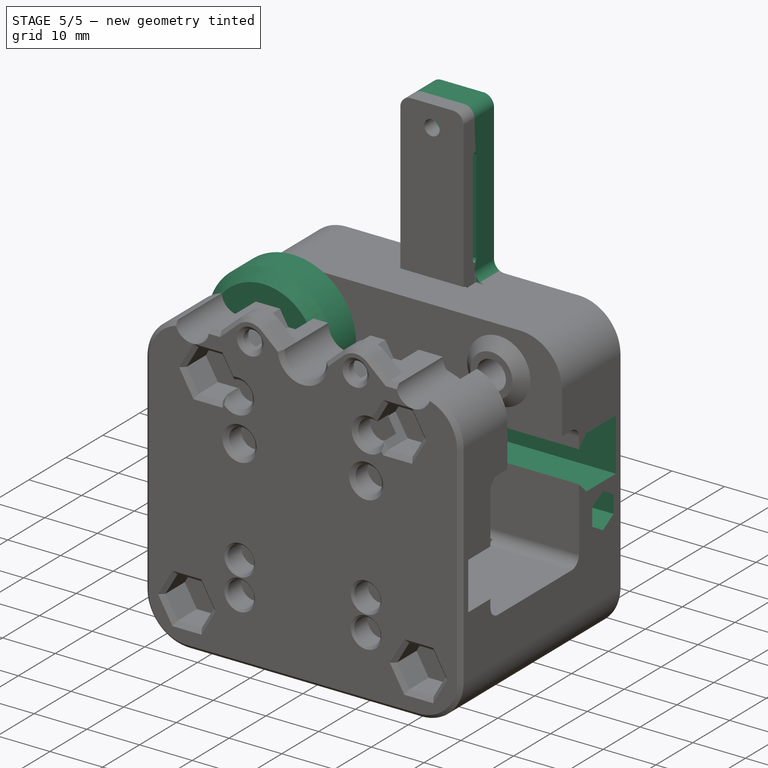
[diagram: stage 5 of 5 — iso view after this stage's code; geometry added in this stage tinted green]
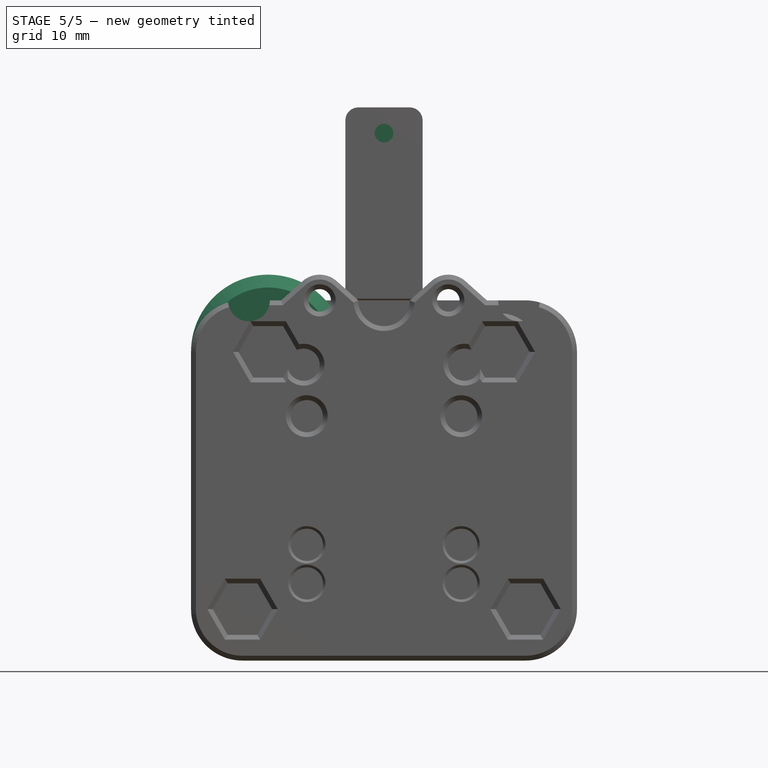
[diagram: stage 5 of 5 — front view after this stage's code; geometry added in this stage tinted green]
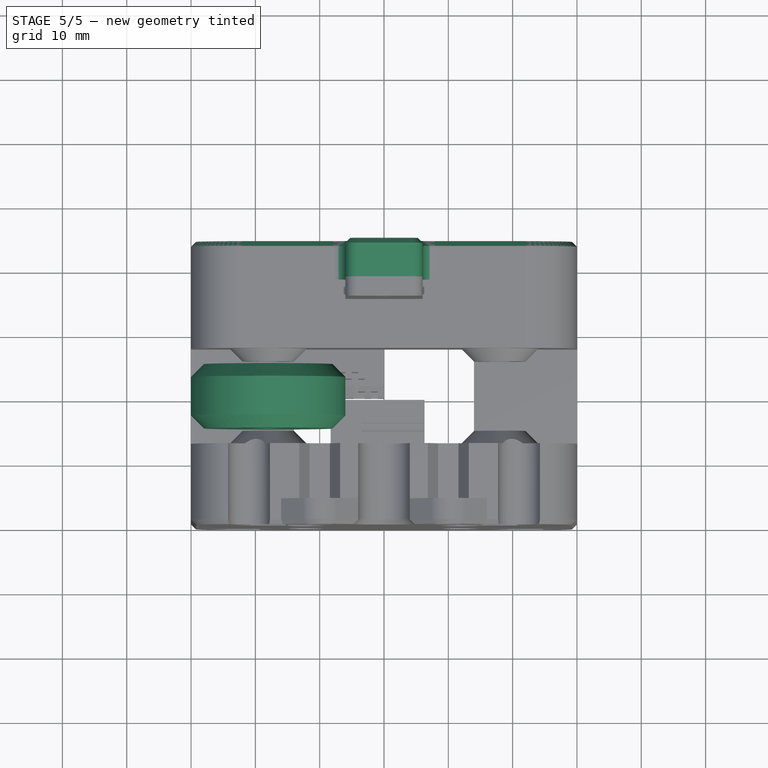
[diagram: stage 5 of 5 — top view after this stage's code; geometry added in this stage tinted green]
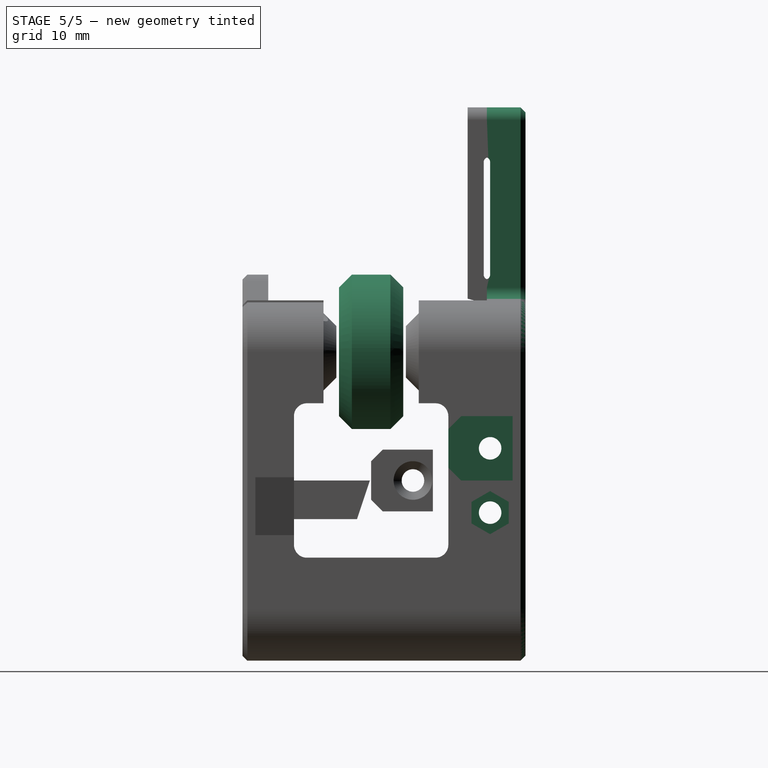
[diagram: stage 5 of 5 — right view after this stage's code; geometry added in this stage tinted green]
FEATURE [Spreadsheet::Sheet] Spreadsheet
  cells = A1='v_wheel_width; B1(v_wheel_width)=10.8; A2='m5_nut_width; B2(m5_nut_width)=8; A3='v_wheel_height; B3(v_wheel_height)=20
FEATURE [App::Link] Link  label="v-wheel"
  LinkPlacement = pos=(18,0,20) rot=(0,0,1;1.5708rad)
  LinkedObject = -> <external ../standard-stuff.FCStd>#Body033
  Placement = pos=(18,0,20) rot=(0,0,1;1.5708rad)
  expr: .Placement.Base.z = Spreadsheet.v_wheel_height
FEATURE [Part::Mirroring] Part__Mirroring  label="v-wheel (Mirror #1)"
  Base = (0,0,0)
  Normal = (1,0,0)
  Source = -> Link
FEATURE [Sketcher::SketchObject] Sketch409
  ArcFitTolerance = 0
  AttachmentOffset = pos=(0,0,-4) rot=(0,0,1;0rad)
  AttachmentSupport = -> [YZ_Plane191]
  FullyConstrained = true
  MakeInternals = false
  MapMode = 5
  Placement = pos=(-4,0,0) rot=(0.57735,0.57735,0.57735;2.0944rad)
  sketch-geometry (8):
    g0: LineSegment StartX=14 StartY=-7e-16 StartZ=0 EndX=22 EndY=-7e-16 EndZ=0
    g1: LineSegment StartX=22 StartY=-7e-16 StartZ=0 EndX=22 EndY=-10 EndZ=0
    g2: LineSegment StartX=22 StartY=-10 StartZ=0 EndX=14 EndY=-10 EndZ=0
    g3: LineSegment StartX=12 StartY=-8 StartZ=0 EndX=12 EndY=-2 EndZ=0
    g4: GeomPoint [constr] X=0 Y=-5 Z=0
    g5: LineSegment StartX=12 StartY=-2 StartZ=0 EndX=14 EndY=-7e-16 EndZ=0
    g6: LineSegment StartX=12 StartY=-8 StartZ=0 EndX=14 EndY=-10 EndZ=0
    g7: GeomPoint [constr] X=12 Y=-5 Z=0
  constraints (21):
    c: Horizontal(g0)
    c: Coincident(g1,g0)
    c: Vertical(g1)
    c: Coincident(g2,g1)
    c: Horizontal(g2)
    c: Vertical(g3)
    c: Vertical(g2,g0)
    c: DistanceX(g3) = 12
    c: DistanceX(g3,g0) = 10
    c: PointOnObject(g4,g-2)
    c: DistanceY(g4) = -5
    c: Coincident(g5,g3)
    c: Coincident(g3,g6)
    c: Angle(g6) = -0.785398
    c: Perpendicular(g6,g5)
    c: DistanceX(g5,g5) = 2
    c: Coincident(g6,g2)
    c: Coincident(g5,g0)
    c: Symmetric(g3,g3,g7)
    c: Horizontal(g4,g7)
    c: DistanceY(g1,g1) = 10
FEATURE [Sketcher::SketchObject] Sketch410
  ArcFitTolerance = 0
  AttachmentSupport = -> [YZ_Plane191]
  FullyConstrained = true
  MakeInternals = false
  MapMode = 5
  Placement = pos=(0,0,0) rot=(0.57735,0.57735,0.57735;2.0944rad)
  sketch-geometry (3):
    g0: Circle CenterX=18.5 CenterY=-5 CenterZ=0 NormalX=0 NormalY=0 NormalZ=1 AngleXU=0 Radius=1.75
    g1: GeomPoint [constr] X=0 Y=-5 Z=0
    g2: GeomPoint [constr] X=12 Y=0 Z=0
  constraints (7):
    c: PointOnObject(g1,g-2)
    c: DistanceY(g1) = -5
    c: Diameter(g0) = 3.5
    c: PointOnObject(g2,g-1)
    c: DistanceX(g2) = 12
    c: DistanceX(g2,g0) = 6.5
    c: Horizontal(g1,g0)
FEATURE [Sketcher::SketchObject] Sketch411
  ArcFitTolerance = 0
  AttachmentOffset = pos=(0,0,6) rot=(0,0,1;0rad)
  AttachmentSupport = -> [YZ_Plane191]
  FullyConstrained = true
  MakeInternals = false
  MapMode = 5
  Placement = pos=(6,0,0) rot=(0.57735,0.57735,0.57735;2.0944rad)
  sketch-geometry (7):
    g0: LineSegment StartX=21.4 StartY=-6.67432 StartZ=0 EndX=21.4 EndY=-3.32568 EndZ=0
    g1: LineSegment StartX=21.4 StartY=-3.32568 StartZ=0 EndX=18.5 EndY=-1.65137 EndZ=0
    g2: LineSegment StartX=18.5 StartY=-1.65137 StartZ=0 EndX=15.6 EndY=-3.32568 EndZ=0
    g3: LineSegment StartX=15.6 StartY=-3.32568 StartZ=0 EndX=15.6 EndY=-6.67432 EndZ=0
    g4: LineSegment StartX=15.6 StartY=-6.67432 StartZ=0 EndX=18.5 EndY=-8.34863 EndZ=0
    g5: LineSegment StartX=18.5 StartY=-8.34863 StartZ=0 EndX=21.4 EndY=-6.67432 EndZ=0
    g6: Circle [constr] CenterX=18.5 CenterY=-5 CenterZ=0 NormalX=0 NormalY=0 NormalZ=1 AngleXU=0 Radius=3.34863
  constraints (17):
    c: Coincident(g0,g1)
    c: Coincident(g1,g2)
    c: Coincident(g2,g3)
    c: Coincident(g3,g4)
    c: Coincident(g4,g5)
    c: Coincident(g5,g0)
    c: Equal(g0, g1-g5) x5
    c: PointOnObject(g0,g6)
    c: PointOnObject(g1,g6)
    c: PointOnObject(g2,g6)
    c: PointOnObject(g3,g6)
    c: PointOnObject(g4,g6)
    c: PointOnObject(g5,g6)
    c: DistanceX(g6) = 18.5
    c: DistanceY(g6) = -5
    c: DistanceX(g2,g0) = 5.8
    c: Vertical(g3)
FEATURE [PartDesign::Pocket] Pocket280
  BaseFeature = -> Pocket279
  Direction = (-1,0,0)
  Length = 5
  Length2 = 5
  Placement = pos=(0,0,0) rot=(1,0,0;1.5708rad)
  Profile = -> Sketch409
  ReferenceAxis = -> Sketch409 [N_Axis]
  Suppressed = false
  Type = 1
FEATURE [PartDesign::Pocket] Pocket281
  BaseFeature = -> Pocket280
  Direction = (-1,0,0)
  Length = 5
  Length2 = 5
  Midplane = true
  Placement = pos=(0,0,0) rot=(1,0,0;1.5708rad)
  Profile = -> Sketch410
  ReferenceAxis = -> Sketch410 [N_Axis]
  Suppressed = false
  Type = 1
FEATURE [PartDesign::Pocket] Pocket282
  BaseFeature = -> Pocket281
  Direction = (-1,0,0)
  Length = 5
  Length2 = 5
  Placement = pos=(0,0,0) rot=(1,0,0;1.5708rad)
  Profile = -> Sketch411
  ReferenceAxis = -> Sketch411 [N_Axis]
  Reversed = true
  Suppressed = false
  Type = 1
FEATURE [PartDesign::PolarPattern] PolarPattern003
  Angle = 360
  Axis = -> Y_Axis192
  BaseFeature = -> Pocket282
  Mode = 0
  Occurrences = 2
  Offset = 120
  Originals = -> [Pocket282,Pocket280,Pocket281]
  Placement = pos=(0,0,0) rot=(1,0,0;1.5708rad)
  Suppressed = false
  TransformMode = 0
FEATURE [Sketcher::SketchObject] Sketch412
  ArcFitTolerance = 1e-06
  AttachmentOffset = pos=(0,0,-24) rot=(0,0,1;0rad)
  AttachmentSupport = -> [XZ_Plane191]
  FullyConstrained = true
  MakeInternals = false
  MapMode = 5
  Placement = pos=(0,24,-5.3e-15) rot=(1,0,0;1.5708rad)
  sketch-geometry (10):
    g0: ArcOfCircle CenterX=8 CenterY=30 CenterZ=0 NormalX=0 NormalY=0 NormalZ=1 AngleXU=0 Radius=2 StartAngle=3.14159 EndAngle=4.71239
    g1: ArcOfCircle CenterX=-8 CenterY=30 CenterZ=0 NormalX=0 NormalY=0 NormalZ=1 AngleXU=0 Radius=2 StartAngle=4.71239 EndAngle=6.28319
    g2: LineSegment StartX=-8 StartY=28 StartZ=0 EndX=8 EndY=28 EndZ=0
    g3: LineSegment StartX=6 StartY=30 StartZ=0 EndX=6 EndY=56 EndZ=0
    g4: LineSegment StartX=4 StartY=58 StartZ=0 EndX=-4 EndY=58 EndZ=0
    g5: LineSegment StartX=-6 StartY=56 StartZ=0 EndX=-6 EndY=30 EndZ=0
    g6: ArcOfCircle CenterX=-4 CenterY=56 CenterZ=0 NormalX=0 NormalY=0 NormalZ=1 AngleXU=0 Radius=2 StartAngle=1.5708 EndAngle=3.14159
    g7: GeomPoint [constr] X=-6 Y=58 Z=0
    g8: ArcOfCircle CenterX=4 CenterY=56 CenterZ=0 NormalX=0 NormalY=0 NormalZ=1 AngleXU=0 Radius=2 StartAngle=1.2e-15 EndAngle=1.5708
    g9: GeomPoint [constr] X=6 Y=58 Z=0
  constraints (23):
    c: Tangent(g2,g1) = -1.5708
    c: Horizontal(g2)
    c: Tangent(g2,g0) = -1.5708
    c: Equal(g0,g1)
    c: Radius(g0) = 2
    c: Tangent(g0,g3) = 1.5708
    c: Vertical(g5)
    c: Tangent(g5,g1) = 1.5708
    c: Vertical(g3)
    c: Symmetric(g9,g7,g-2)
    c: PointOnObject(g7,g4)
    c: PointOnObject(g7,g5)
    c: Tangent(g4,g6) = -1.5708
    c: Tangent(g5,g6) = -1.5708
    c: PointOnObject(g9,g3)
    c: PointOnObject(g9,g4)
    c: Tangent(g3,g8) = -1.5708
    c: Tangent(g4,g8) = -1.5708
    c: Equal(g6,g8)
    c: Equal(g8,g0)
    c: DistanceX(g7,g9) = 12
    c: DistanceY(g7) = 58
    c: DistanceY(g1) = 28
FEATURE [PartDesign::Pad] Pad026
  BaseFeature = -> PolarPattern003
  Direction = (0,-1,2e-16)
  Length = 6
  Length2 = 10
  Placement = pos=(0,0,0) rot=(1,0,0;1.5708rad)
  Profile = -> Sketch412
  ReferenceAxis = -> Sketch412 [N_Axis]
  Refine = true
  Suppressed = false
  Type = 0
FEATURE [Sketcher::SketchObject] Sketch413
  ArcFitTolerance = 0
  AttachmentSupport = -> [YZ_Plane191]
  FullyConstrained = true
  MakeInternals = false
  MapMode = 5
  Placement = pos=(0,0,0) rot=(0.57735,0.57735,0.57735;2.0944rad)
  sketch-geometry (11):
    g0: LineSegment StartX=18 StartY=28 StartZ=0 EndX=18 EndY=26.8 EndZ=0
    g1: LineSegment StartX=18 StartY=26.8 StartZ=0 EndX=16.9172 EndY=26.8 EndZ=0
    g2: LineSegment StartX=16.9172 StartY=26.8 StartZ=0 EndX=15.7172 EndY=28 EndZ=0
    g3: LineSegment StartX=15.7172 StartY=28 StartZ=0 EndX=18 EndY=28 EndZ=0
    g4: ArcOfCircle CenterX=17.75 CenterY=49.5 CenterZ=0 NormalX=0 NormalY=0 NormalZ=1 AngleXU=0 Radius=0.75 StartAngle=1.1e-15 EndAngle=3.14159
    g5: ArcOfCircle CenterX=17.75 CenterY=32 CenterZ=0 NormalX=0 NormalY=0 NormalZ=1 AngleXU=0 Radius=0.75 StartAngle=3.14159 EndAngle=6.28319
    g6: LineSegment StartX=17 StartY=49.5 StartZ=0 EndX=17 EndY=32 EndZ=0
    g7: LineSegment StartX=18.5 StartY=32 StartZ=0 EndX=18.5 EndY=49.5 EndZ=0
    g8: GeomPoint [constr] X=17.75 Y=40.75 Z=0
    g9: GeomPoint [constr] X=18 Y=56 Z=0
    g10: GeomPoint [constr] X=17 Y=27 Z=0
  constraints (27):
    c: Vertical(g0)
    c: Coincident(g0,g1)
    c: Horizontal(g1)
    c: Coincident(g1,g2)
    c: Coincident(g2,g3)
    c: Coincident(g3,g0)
    c: Horizontal(g3)
    c: Angle(g2) = 2.35619
    c: DistanceX(g0) = 18
    c: DistanceY(g0) = 28
    c: Tangent(g4,g6) = -1.5708
    c: Tangent(g6,g5) = -1.5708
    c: Tangent(g5,g7) = -1.5708
    c: Tangent(g7,g4) = -1.5708
    c: Equal(g4,g5)
    c: Vertical(g6)
    c: DistanceY(g7,g7) = 17.5
    c: Symmetric(g4,g5,g8)
    c: Vertical(g9,g0)
    c: DistanceY(g9) = 56
    c: DistanceX(g5,g0) = 0.25
    c: DistanceY(g0,g5) = 4
    c: DistanceX(g5,g5) = 1.5
    c: DistanceY(g10,g0) = 1
    c: DistanceX(g10,g0) = 1
    c: Distance(g10,g2) = 0.2
    c: Distance(g10,g1) = 0.2
FEATURE [PartDesign::Pocket] Pocket283
  BaseFeature = -> Pad026
  Direction = (-1,0,0)
  Length = 12.5
  Length2 = 5
  Midplane = true
  Placement = pos=(0,0,0) rot=(1,0,0;1.5708rad)
  Profile = -> Sketch413
  ReferenceAxis = -> Sketch413 [N_Axis]
  Suppressed = false
  Type = 0
FEATURE [Sketcher::SketchObject] Sketch414
  ArcFitTolerance = 0
  AttachmentOffset = pos=(0,0,-19.7) rot=(0,0,1;0rad)
  AttachmentSupport = -> [XZ_Plane191]
  FullyConstrained = true
  MakeInternals = false
  MapMode = 5
  Placement = pos=(0,19.7,-4.4e-15) rot=(1,0,0;1.5708rad)
  sketch-geometry (2):
    g0: Circle CenterX=0 CenterY=54 CenterZ=0 NormalX=0 NormalY=0 NormalZ=1 AngleXU=0 Radius=1.75
    g1: GeomPoint [constr] X=0 Y=28 Z=0
  constraints (5):
    c: PointOnObject(g0,g-2)
    c: Diameter(g0) = 3.5
    c: PointOnObject(g1,g-2)
    c: DistanceY(g1) = 28
    c: DistanceY(g1,g0) = 26
FEATURE [PartDesign::Pocket] Pocket284
  BaseFeature = -> Pocket283
  Direction = (0,1,-2e-16)
  Length = 5
  Length2 = 5
  Placement = pos=(0,0,0) rot=(1,0,0;1.5708rad)
  Profile = -> Sketch414
  ReferenceAxis = -> Sketch414 [N_Axis]
  Reversed = true
  Suppressed = false
  Type = 1
FEATURE [Sketcher::SketchObject] Sketch415
  ArcFitTolerance = 1e-06
  AttachmentOffset = pos=(0,0,-20) rot=(0,0,1;0rad)
  AttachmentSupport = -> [XZ_Plane191]
  FullyConstrained = true
  MakeInternals = false
  MapMode = 5
  Placement = pos=(0,20,-4.4e-15) rot=(1,0,0;1.5708rad)
  sketch-geometry (2):
    g0: Circle CenterX=0 CenterY=54 CenterZ=0 NormalX=0 NormalY=0 NormalZ=1 AngleXU=0 Radius=3
    g1: GeomPoint X=0 Y=28 Z=0
  constraints (5):
    c: PointOnObject(g0,g-2)
    c: PointOnObject(g1,g-2)
    c: DistanceY(g1) = 28
    c: DistanceY(g1,g0) = 26
    c: Diameter(g0) = 6
FEATURE [PartDesign::Pocket] Pocket285
  BaseFeature = -> Pocket284
  Direction = (0,1,-2e-16)
  Length = 5
  Length2 = 5
  Placement = pos=(0,0,0) rot=(1,0,0;1.5708rad)
  Profile = -> Sketch415
  ReferenceAxis = -> Sketch415 [N_Axis]
  Suppressed = false
  Type = 1
FEATURE [PartDesign::Chamfer] Chamfer024
  Angle = 45
  Base = -> Pocket285 [Edge46,Edge66,Edge65,Edge68,Edge69]
  BaseFeature = -> Pocket285
  ChamferType = 0
  FlipDirection = false
  Placement = pos=(0,0,0) rot=(1,0,0;1.5708rad)
  Size = 0.75
  Size2 = 1
  SupportTransform = false
  Suppressed = false
  UseAllEdges = false
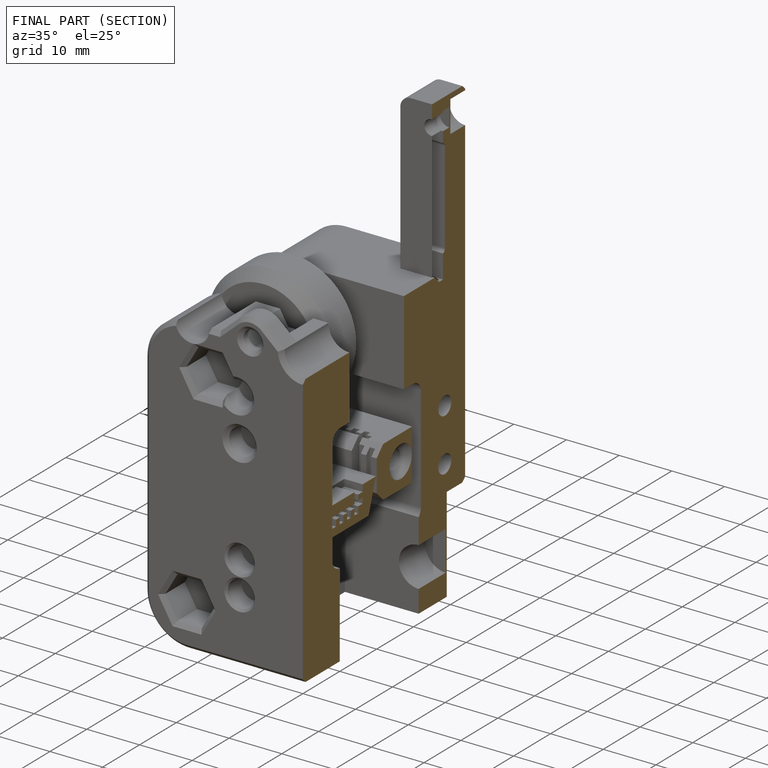
[diagram: finished part — half-section view (interior)]
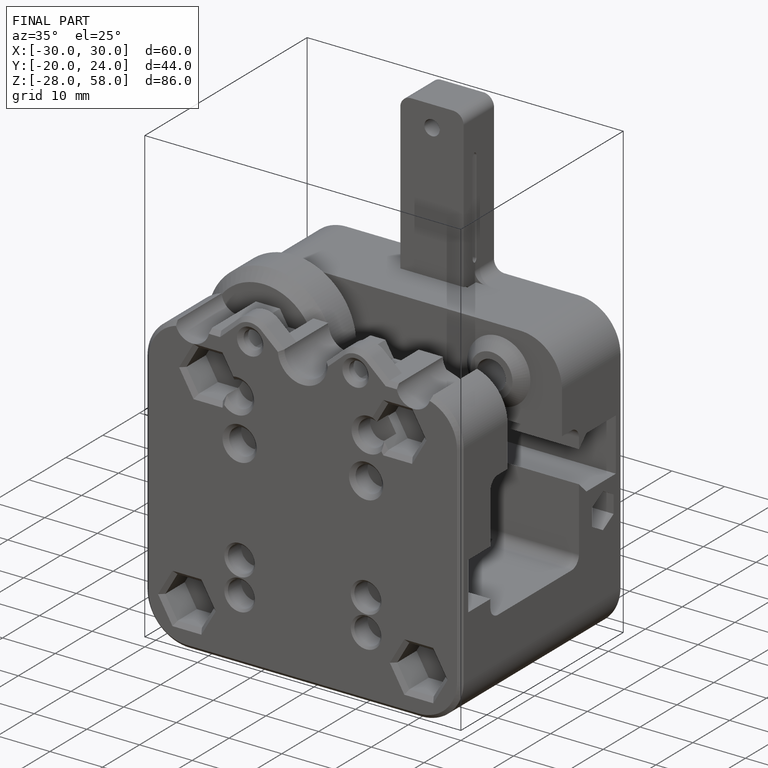
[diagram: finished part — iso view with bounding-box wireframe]
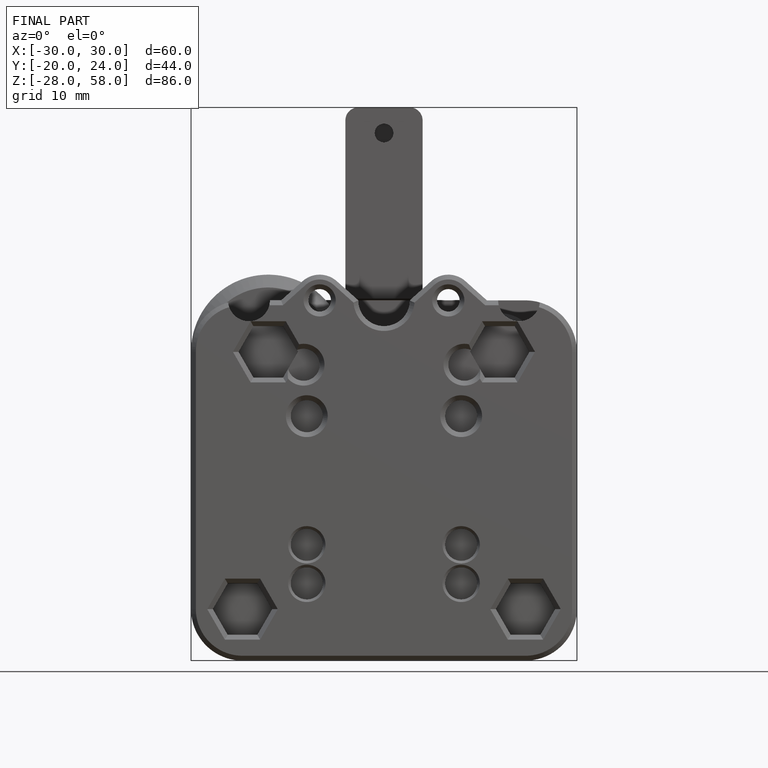
[diagram: finished part — front view with bounding-box wireframe]
